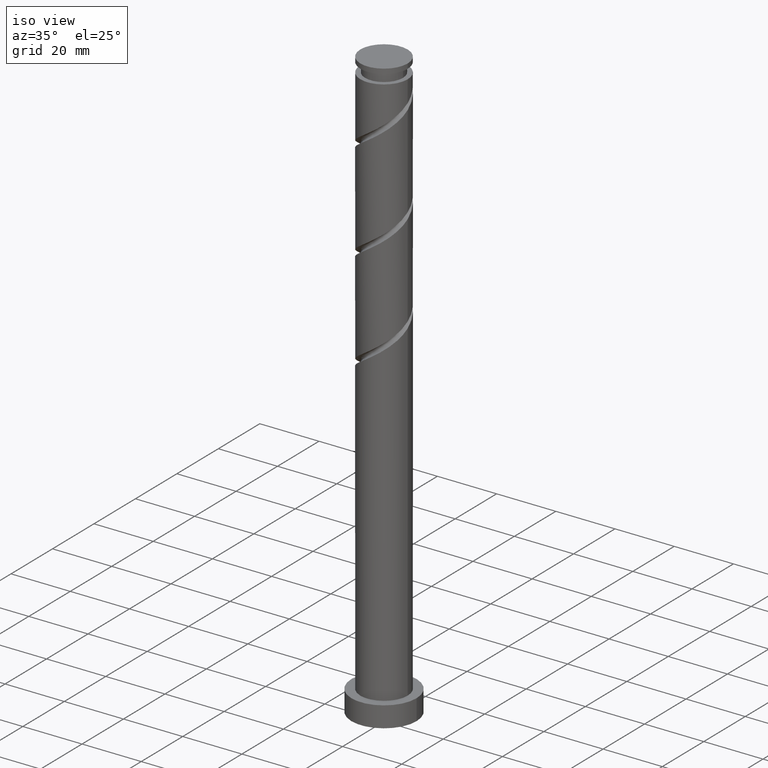
[diagram: clean part render]
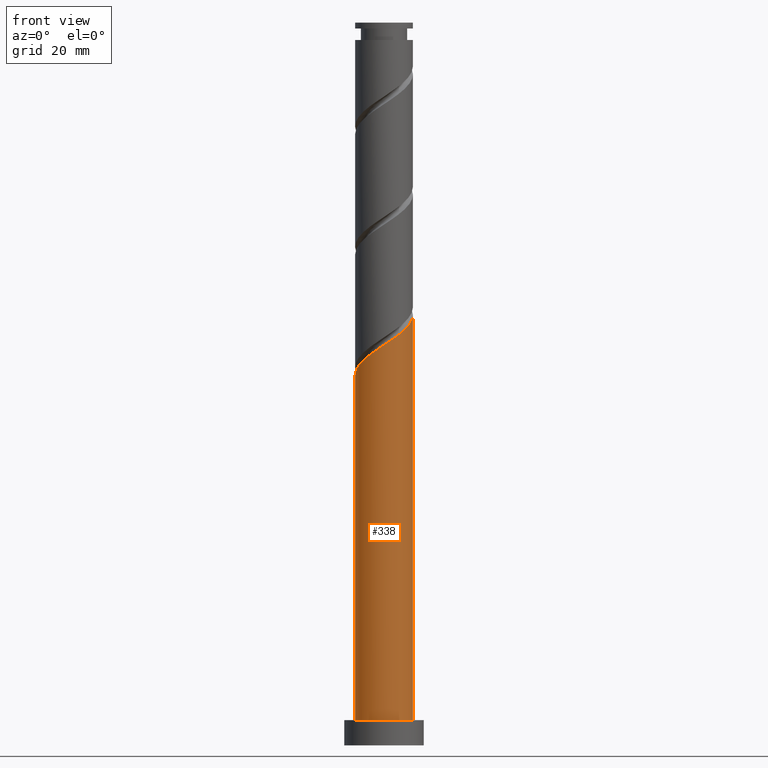
[diagram: tour spotlight — one face highlighted and labeled with its STEP entity id]
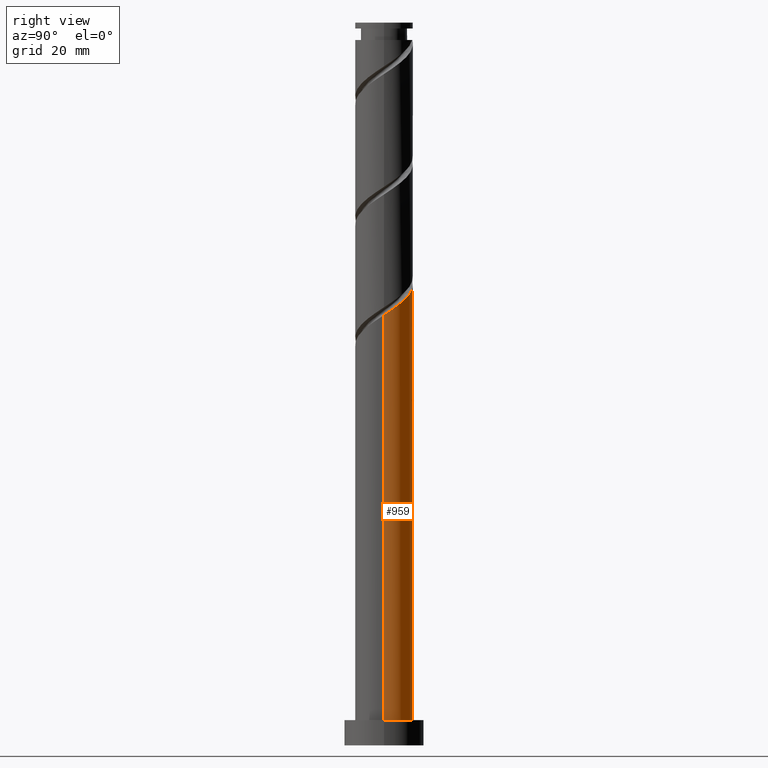
[diagram: tour spotlight — one face highlighted and labeled with its STEP entity id]
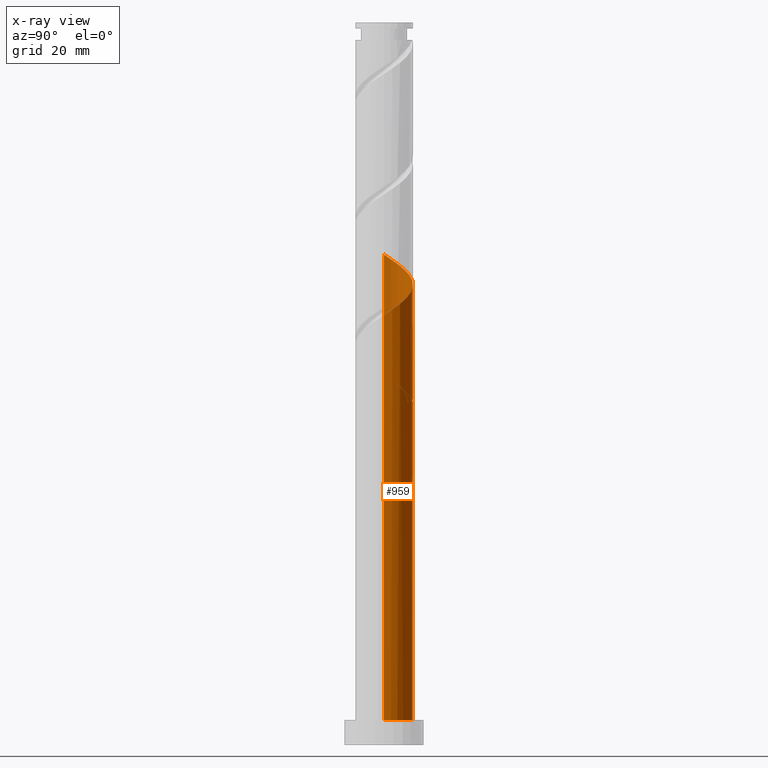
[diagram: x-ray of the same camera — body ghosted, this tour face saturated]
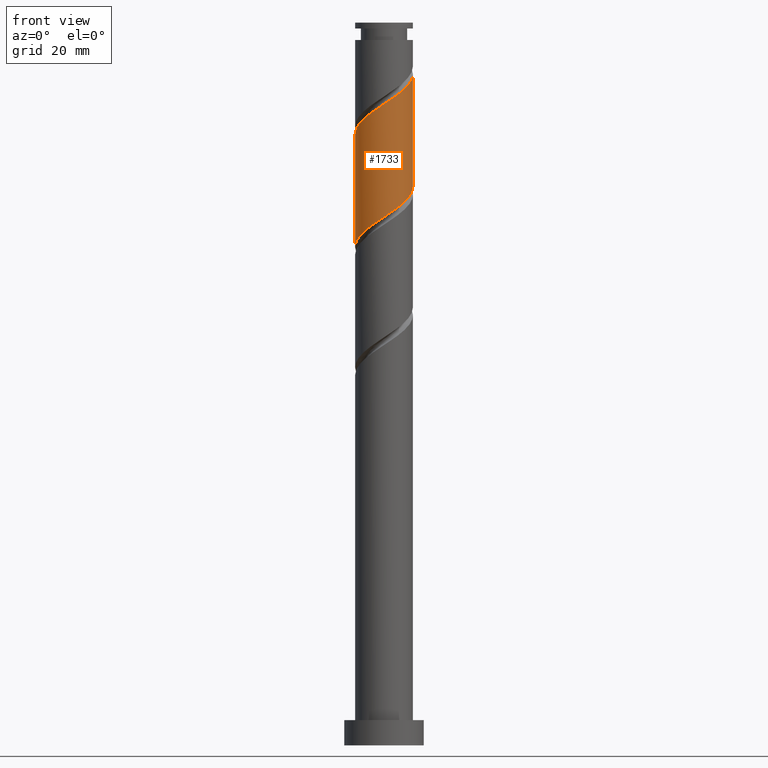
[diagram: tour spotlight — one face highlighted and labeled with its STEP entity id]
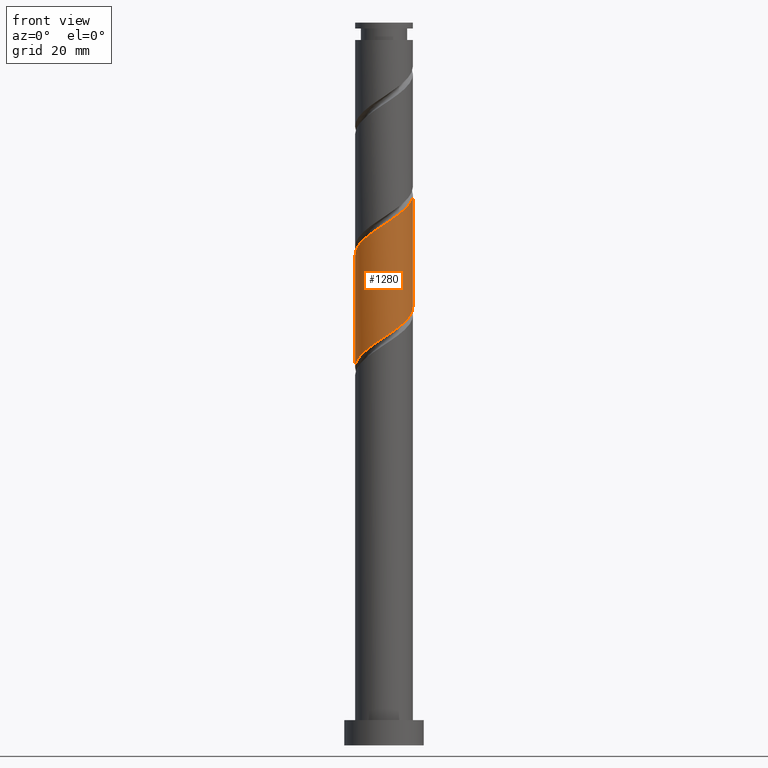
[diagram: tour spotlight — one face highlighted and labeled with its STEP entity id]
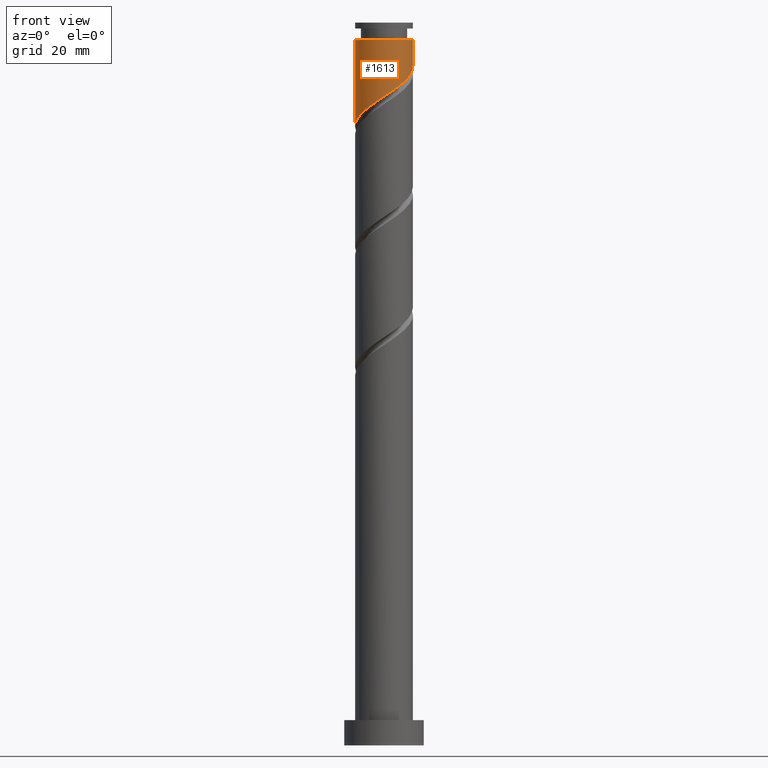
[diagram: tour spotlight — one face highlighted and labeled with its STEP entity id]
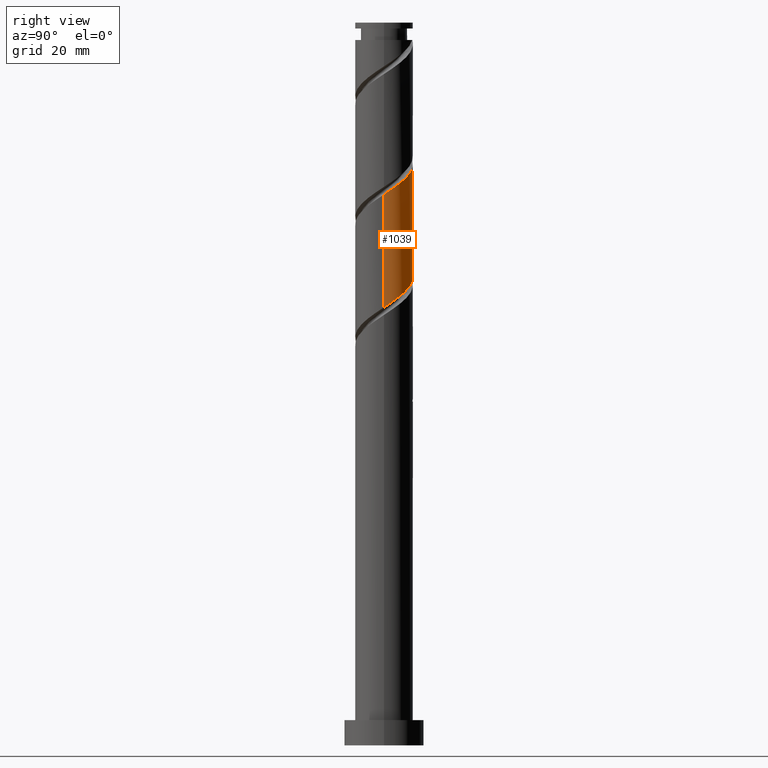
[diagram: tour spotlight — one face highlighted and labeled with its STEP entity id]
A machine part: a face-by-face anatomy tour. The part has 21 B-rep faces; the first image is the clean iso view, then the 6 largest visible faces are spotlighted one at a time (largest first), each with its STEP entity span.

Face 1 — front view, entity #338. In plain terms, the highlighted cylindrical surface (edge-blend (fillet) strip) has radius 8 mm, axis along (-0, -0, -1).
Definition (entity closure, byte-faithful):
#14 = CARTESIAN_POINT ( 'NONE',  ( 3.566875813338892254, -7.160823760728806775, 113.2306574428855726 ) ) ;
#29 = CARTESIAN_POINT ( 'NONE',  ( 6.669416946860165396, -4.418017382144921790, 116.0084352206633582 ) ) ;
#33 = ORIENTED_EDGE ( 'NONE', *, *, #1191, .F. ) ;
#56 = LINE ( 'NONE', #1154, #1432 ) ;
#126 = CARTESIAN_POINT ( 'NONE',  ( -7.840000000000014069, -1.591979899370593587, 103.5084352206633582 ) ) ;
#143 = CARTESIAN_POINT ( 'NONE',  ( -7.160823760728805887, -3.566875813338893586, 104.8973241095522440 ) ) ;
#148 = ORIENTED_EDGE ( 'NONE', *, *, #982, .T. ) ;
#153 = CIRCLE ( 'NONE', #1468, 8.000000000000000000 ) ;
#159 = ORIENTED_EDGE ( 'NONE', *, *, #835, .F. ) ;
#244 = DIRECTION ( 'NONE',  ( 0.000000000000000000, 0.000000000000000000, 1.000000000000000000 ) ) ;
#263 = CARTESIAN_POINT ( 'NONE',  ( 5.298695035169132872, -5.993649215984715006, 114.6195463317744583 ) ) ;
#269 = EDGE_LOOP ( 'NONE', ( #159, #33, #148, #1120 ) ) ;
#273 = CARTESIAN_POINT ( 'NONE',  ( 7.920198261106539128, -1.542637946022688666, 118.0917685539966584 ) ) ;
#286 = CARTESIAN_POINT ( 'NONE',  ( -7.630411870138943620, -2.624135480455778158, 104.2028796651077727 ) ) ;
#298 = CARTESIAN_POINT ( 'NONE',  ( 8.000000000000012434, -1.674823857685454851E-15, 119.1115352321199197 ) ) ;
#307 = CARTESIAN_POINT ( 'NONE',  ( -2.541304964830881641, -7.585629115355305707, 109.0639907762189011 ) ) ;
#338 = ADVANCED_FACE ( 'NONE', ( #1251 ), #839, .T. ) ;
#358 =( BOUNDED_CURVE ( )  B_SPLINE_CURVE ( 2, ( #685, #1255, #126, #286, #143, #1383, #1745, #1628, #953, #676, #307, #1620, #692, #979, #405, #1228, #14, #816, #263, #961, #29, #1514, #807, #273, #1521, #1345, #298 ),
 .UNSPECIFIED., .F., .T. ) 
 B_SPLINE_CURVE_WITH_KNOTS ( ( 3, 2, 2, 2, 2, 2, 2, 2, 2, 2, 2, 2, 2, 3 ),
 ( 0.05453176698144637791, 0.06250000000000000000, 0.07291666666666662966, 0.08333333333333337034, 0.09375000000000000000, 0.1041666666666666297, 0.1145833333333333703, 0.1250000000000000000, 0.1354166666666666297, 0.1458333333333333703, 0.1562500000000000000, 0.1666666666666666297, 0.1770833333333333703, 0.1795317669814462669 ),
 .UNSPECIFIED. ) 
 CURVE ( )  GEOMETRIC_REPRESENTATION_ITEM ( )  RATIONAL_B_SPLINE_CURVE ( ( 0.9062941362546417245, 0.9031415850403461398, 0.9090909090909213841, 0.9013135103398399739, 0.9090909090909213841, 0.9013135103398399739, 0.9090909090909213841, 0.9013135103398399739, 0.9090909090909213841, 0.9013135103398399739, 0.9090909090909213841, 0.9013135103398399739, 0.9090909090909213841, 0.9013135103398399739, 0.9090909090909213841, 0.9013135103398399739, 0.9090909090909213841, 0.9013135103398399739, 0.9090909090909213841, 0.9013135103398399739, 0.9090909090909213841, 0.9013135103398399739, 0.9090909090909213841, 0.9013135103398399739, 0.9090909090909213841, 0.9072628343904152182, 0.9062941362546418356 ) ) 
 REPRESENTATION_ITEM ( '' )  );
#361 = VECTOR ( 'NONE', #391, 1000.000000000000000 ) ;
#391 = DIRECTION ( 'NONE',  ( -0.000000000000000000, -0.000000000000000000, -1.000000000000000000 ) ) ;
#405 = CARTESIAN_POINT ( 'NONE',  ( 1.591979899370592699, -7.840000000000014069, 111.8417685539966726 ) ) ;
#464 = DIRECTION ( 'NONE',  ( -0.000000000000000000, -0.000000000000000000, -1.000000000000000000 ) ) ;
#527 = VERTEX_POINT ( 'NONE', #793 ) ;
#676 = CARTESIAN_POINT ( 'NONE',  ( -3.539971983639073727, -7.251059969604071398, 108.3695463317744725 ) ) ;
#685 = CARTESIAN_POINT ( 'NONE',  ( -8.000000000000012434, -3.319740146483669233E-15, 102.4448685654532767 ) ) ;
#692 = CARTESIAN_POINT ( 'NONE',  ( -0.4914068138686400466, -7.984893195483813599, 110.4528796651077727 ) ) ;
#754 = CARTESIAN_POINT ( 'NONE',  ( -8.000000000000000000, 0.000000000000000000, 7.000000000000000000 ) ) ;
#793 = CARTESIAN_POINT ( 'NONE',  ( 8.000000000000000000, 9.797174393178825657E-16, 7.000000000000000000 ) ) ;
#807 = CARTESIAN_POINT ( 'NONE',  ( 7.585629115355305707, -2.541304964830882085, 117.3973241095522440 ) ) ;
#816 = CARTESIAN_POINT ( 'NONE',  ( 4.509616146222005462, -6.691235651318665489, 113.9251018873300154 ) ) ;
#835 = EDGE_CURVE ( 'NONE', #1218, #527, #56, .T. ) ;
#839 = CYLINDRICAL_SURFACE ( 'NONE', #1704, 8.000000000000000000 ) ;
#850 = DIRECTION ( 'NONE',  ( -1.000000000000000000, 0.000000000000000000, 0.000000000000000000 ) ) ;
#945 = CARTESIAN_POINT ( 'NONE',  ( -8.000000000000012434, -3.319740146483669233E-15, 102.4448685654532767 ) ) ;
#953 = CARTESIAN_POINT ( 'NONE',  ( -4.418017382144918237, -6.669416946860166284, 107.6751018873300296 ) ) ;
#961 = CARTESIAN_POINT ( 'NONE',  ( 6.087773924116254065, -5.296062780650762747, 115.3139907762189154 ) ) ;
#979 = CARTESIAN_POINT ( 'NONE',  ( 0.5598243182854053535, -8.049588129861081853, 111.1473241095522013 ) ) ;
#982 = EDGE_CURVE ( 'NONE', #1186, #1306, #1196, .T. ) ;
#1113 = CARTESIAN_POINT ( 'NONE',  ( 0.000000000000000000, 0.000000000000000000, 200.0000000000000000 ) ) ;
#1120 = ORIENTED_EDGE ( 'NONE', *, *, #1641, .T. ) ;
#1154 = CARTESIAN_POINT ( 'NONE',  ( 8.000000000000000000, 9.797174393178825657E-16, 200.0000000000000000 ) ) ;
#1186 = VERTEX_POINT ( 'NONE', #945 ) ;
#1191 = EDGE_CURVE ( 'NONE', #1186, #1218, #358, .T. ) ;
#1196 = LINE ( 'NONE', #1445, #361 ) ;
#1218 = VERTEX_POINT ( 'NONE', #1356 ) ;
#1228 = CARTESIAN_POINT ( 'NONE',  ( 2.624135480455778158, -7.630411870138943620, 112.5362129984411155 ) ) ;
#1251 = FACE_OUTER_BOUND ( 'NONE', #269, .T. ) ;
#1255 = CARTESIAN_POINT ( 'NONE',  ( -8.000000000000012434, -0.8040302522073746738, 102.9782949346425340 ) ) ;
#1271 = DIRECTION ( 'NONE',  ( -0.000000000000000000, -0.000000000000000000, -1.000000000000000000 ) ) ;
#1306 = VERTEX_POINT ( 'NONE', #754 ) ;
#1326 = CARTESIAN_POINT ( 'NONE',  ( 0.000000000000000000, 0.000000000000000000, 7.000000000000000000 ) ) ;
#1345 = CARTESIAN_POINT ( 'NONE',  ( 8.000000000000012434, -0.2459356132614008983, 118.9483715440917564 ) ) ;
#1356 = CARTESIAN_POINT ( 'NONE',  ( 8.000000000000012434, -1.674823857685454851E-15, 119.1115352321199197 ) ) ;
#1383 = CARTESIAN_POINT ( 'NONE',  ( -6.691235651318664601, -4.509616146222007238, 105.5917685539966726 ) ) ;
#1432 = VECTOR ( 'NONE', #1271, 1000.000000000000000 ) ;
#1445 = CARTESIAN_POINT ( 'NONE',  ( -8.000000000000000000, 0.000000000000000000, 200.0000000000000000 ) ) ;
#1452 = DIRECTION ( 'NONE',  ( 1.000000000000000000, 0.000000000000000000, 0.000000000000000000 ) ) ;
#1468 = AXIS2_PLACEMENT_3D ( 'NONE', #1326, #244, #1452 ) ;
#1514 = CARTESIAN_POINT ( 'NONE',  ( 7.251059969604068733, -3.539971983639074171, 116.7028796651077727 ) ) ;
#1521 = CARTESIAN_POINT ( 'NONE',  ( 7.984893195483813599, -0.4914068138686441545, 118.7862129984411297 ) ) ;
#1620 = CARTESIAN_POINT ( 'NONE',  ( -1.542637946022684226, -7.920198261106539128, 109.7584352206633014 ) ) ;
#1628 = CARTESIAN_POINT ( 'NONE',  ( -5.296062780650762747, -6.087773924116254065, 106.9806574428855583 ) ) ;
#1641 = EDGE_CURVE ( 'NONE', #1306, #527, #153, .T. ) ;
#1704 = AXIS2_PLACEMENT_3D ( 'NONE', #1113, #464, #850 ) ;
#1745 = CARTESIAN_POINT ( 'NONE',  ( -5.993649215984713230, -5.298695035169133760, 106.2862129984411297 ) ) ;

Face 2 — right view, entity #959. An x-ray twin of the same camera follows (body ghosted, this face saturated) — the face is partly hidden behind the body. In plain terms, the highlighted cylindrical surface (edge-blend (fillet) strip) has radius 8 mm, axis along (-0, -0, -1).
Definition (entity closure, byte-faithful):
#56 = LINE ( 'NONE', #1154, #1432 ) ;
#64 = VERTEX_POINT ( 'NONE', #410 ) ;
#79 = CARTESIAN_POINT ( 'NONE',  ( 7.630411870138943620, 2.624135480455775937, 120.8695463317744299 ) ) ;
#86 = CARTESIAN_POINT ( 'NONE',  ( -8.000000000000012434, -3.319740146483669233E-15, 135.7782018987865911 ) ) ;
#95 = CIRCLE ( 'NONE', #180, 8.000000000000000000 ) ;
#115 = CARTESIAN_POINT ( 'NONE',  ( -7.920198261106539128, 1.542637946022684003, 134.7584352206633014 ) ) ;
#117 = DIRECTION ( 'NONE',  ( -0.000000000000000000, -0.000000000000000000, -1.000000000000000000 ) ) ;
#146 = CARTESIAN_POINT ( 'NONE',  ( -2.624135480455778602, 7.630411870138940955, 95.86954633177438723 ) ) ;
#165 = CARTESIAN_POINT ( 'NONE',  ( -5.298695035169133760, 5.993649215984713230, 97.95287966510781530 ) ) ;
#167 = EDGE_CURVE ( 'NONE', #527, #1306, #95, .T. ) ;
#180 = AXIS2_PLACEMENT_3D ( 'NONE', #303, #566, #1361 ) ;
#191 = CARTESIAN_POINT ( 'NONE',  ( -6.691235651318653055, 4.509616146222005462, 101.4251018873300012 ) ) ;
#201 = EDGE_CURVE ( 'NONE', #64, #1395, #933, .T. ) ;
#204 = ORIENTED_EDGE ( 'NONE', *, *, #982, .F. ) ;
#219 = CARTESIAN_POINT ( 'NONE',  ( -7.160823760728788123, 3.566875813338890477, 102.1195463317744299 ) ) ;
#235 = CARTESIAN_POINT ( 'NONE',  ( 8.000000000000012434, -1.674823857685454851E-15, 119.1115352321199197 ) ) ;
#252 = CARTESIAN_POINT ( 'NONE',  ( -7.251059969604072286, 3.539971983639071507, 133.3695463317744156 ) ) ;
#261 = VERTEX_POINT ( 'NONE', #312 ) ;
#303 = CARTESIAN_POINT ( 'NONE',  ( 0.000000000000000000, 0.000000000000000000, 7.000000000000000000 ) ) ;
#312 = CARTESIAN_POINT ( 'NONE',  ( 1.591979899370594254, 7.839999999999998082, 95.17510188733000120 ) ) ;
#316 = CARTESIAN_POINT ( 'NONE',  ( -6.669416946860167172, 4.418017382144917349, 99.34176855399665840 ) ) ;
#361 = VECTOR ( 'NONE', #391, 1000.000000000000000 ) ;
#389 = CARTESIAN_POINT ( 'NONE',  ( 7.840000000000014069, 1.591979899370592033, 120.1751018873300154 ) ) ;
#391 = DIRECTION ( 'NONE',  ( -0.000000000000000000, -0.000000000000000000, -1.000000000000000000 ) ) ;
#410 = CARTESIAN_POINT ( 'NONE',  ( -8.000000000000012434, -3.319740146483669233E-15, 135.7782018987865911 ) ) ;
#428 = CARTESIAN_POINT ( 'NONE',  ( -8.000000000000000000, 0.000000000000000000, 200.0000000000000000 ) ) ;
#450 = CARTESIAN_POINT ( 'NONE',  ( -1.542637946022679785, 7.920198261106529358, 97.25843522066334401 ) ) ;
#481 = ORIENTED_EDGE ( 'NONE', *, *, #835, .T. ) ;
#494 = CARTESIAN_POINT ( 'NONE',  ( -8.000000000000012434, 0.2459356132613987056, 135.6150382107584278 ) ) ;
#510 = CARTESIAN_POINT ( 'NONE',  ( 6.691235651318665489, 4.509616146222005462, 122.2584352206633014 ) ) ;
#518 = CARTESIAN_POINT ( 'NONE',  ( -5.298695035169133760, 5.993649215984713230, 131.2862129984411581 ) ) ;
#527 = VERTEX_POINT ( 'NONE', #793 ) ;
#566 = DIRECTION ( 'NONE',  ( 0.000000000000000000, 0.000000000000000000, 1.000000000000000000 ) ) ;
#580 = CARTESIAN_POINT ( 'NONE',  ( -7.920198261106539128, 1.542637946022684003, 101.4251018873299870 ) ) ;
#597 = CARTESIAN_POINT ( 'NONE',  ( 0.5598243182854089062, 8.049588129861067642, 95.86954633177444407 ) ) ;
#601 = ORIENTED_EDGE ( 'NONE', *, *, #1659, .F. ) ;
#606 = CARTESIAN_POINT ( 'NONE',  ( 1.591979899370594254, 7.839999999999998082, 95.17510188733001542 ) ) ;
#630 = CARTESIAN_POINT ( 'NONE',  ( 4.418017382144919125, 6.669416946860166284, 124.3417685539966868 ) ) ;
#638 = CARTESIAN_POINT ( 'NONE',  ( 7.160823760728806775, 3.566875813338891366, 121.5639907762189154 ) ) ;
#674 = EDGE_CURVE ( 'NONE', #1447, #1186, #1138, .T. ) ;
#687 = CARTESIAN_POINT ( 'NONE',  ( -3.566875813338894030, 7.160823760728804999, 96.56399077621892957 ) ) ;
#737 = DIRECTION ( 'NONE',  ( 0.000000000000000000, 1.000000000000000000, -5.204170427930421283E-15 ) ) ;
#740 = CARTESIAN_POINT ( 'NONE',  ( -3.539971983639063513, 7.251059969604063404, 98.64732410955220132 ) ) ;
#754 = CARTESIAN_POINT ( 'NONE',  ( -8.000000000000000000, 0.000000000000000000, 7.000000000000000000 ) ) ;
#758 = CARTESIAN_POINT ( 'NONE',  ( -7.839999999999998082, 1.591979899370592255, 103.5084352206633014 ) ) ;
#786 = CARTESIAN_POINT ( 'NONE',  ( -3.566875813338894030, 7.160823760728804999, 129.8973241095522724 ) ) ;
#793 = CARTESIAN_POINT ( 'NONE',  ( 8.000000000000000000, 9.797174393178825657E-16, 7.000000000000000000 ) ) ;
#796 = CARTESIAN_POINT ( 'NONE',  ( -4.509616146222008126, 6.691235651318663713, 130.5917685539966726 ) ) ;
#822 =( BOUNDED_CURVE ( )  B_SPLINE_CURVE ( 2, ( #235, #1184, #389, #79, #638, #510, #1435, #1059, #630, #1588, #1732, #896, #1310, #918, #1573, #1203, #786, #796, #518, #1596, #926, #252, #1566, #115, #1165, #494, #86 ),
 .UNSPECIFIED., .F., .T. ) 
 B_SPLINE_CURVE_WITH_KNOTS ( ( 3, 2, 2, 2, 2, 2, 2, 2, 2, 2, 2, 2, 2, 3 ),
 ( 0.1795317669814462669, 0.1875000000000000000, 0.1979166666666666297, 0.2083333333333333703, 0.2187500000000000000, 0.2291666666666666297, 0.2395833333333333703, 0.2500000000000000000, 0.2604166666666666297, 0.2708333333333333703, 0.2812500000000000000, 0.2916666666666666297, 0.3020833333333333703, 0.3045317669814462391 ),
 .UNSPECIFIED. ) 
 CURVE ( )  GEOMETRIC_REPRESENTATION_ITEM ( )  RATIONAL_B_SPLINE_CURVE ( ( 0.9062941362546418356, 0.9031415850403461398, 0.9090909090909213841, 0.9013135103398399739, 0.9090909090909213841, 0.9013135103398399739, 0.9090909090909213841, 0.9013135103398399739, 0.9090909090909213841, 0.9013135103398399739, 0.9090909090909213841, 0.9013135103398399739, 0.9090909090909213841, 0.9013135103398399739, 0.9090909090909213841, 0.9013135103398399739, 0.9090909090909213841, 0.9013135103398399739, 0.9090909090909213841, 0.9013135103398399739, 0.9090909090909213841, 0.9013135103398399739, 0.9090909090909213841, 0.9013135103398399739, 0.9090909090909213841, 0.9072628343904152182, 0.9062941362546417245 ) ) 
 REPRESENTATION_ITEM ( '' )  );
#835 = EDGE_CURVE ( 'NONE', #1218, #527, #56, .T. ) ;
#847 = CARTESIAN_POINT ( 'NONE',  ( -7.585629115355305707, 2.541304964830878976, 100.7306574428855868 ) ) ;
#852 = CARTESIAN_POINT ( 'NONE',  ( -1.591979899370591589, 7.840000000000014069, 95.17510188733000120 ) ) ;
#854 = CARTESIAN_POINT ( 'NONE',  ( -7.984893195483813599, 0.4914068138686395470, 102.1195463317744725 ) ) ;
#865 = ORIENTED_EDGE ( 'NONE', *, *, #167, .T. ) ;
#867 = AXIS2_PLACEMENT_3D ( 'NONE', #920, #117, #1305 ) ;
#880 = CARTESIAN_POINT ( 'NONE',  ( -5.993649215984699907, 5.298695035169125767, 100.7306574428855583 ) ) ;
#887 = ORIENTED_EDGE ( 'NONE', *, *, #891, .F. ) ;
#890 = CARTESIAN_POINT ( 'NONE',  ( -7.999999999999998224, 0.8040302522073743408, 104.0385755066841114 ) ) ;
#891 = EDGE_CURVE ( 'NONE', #1395, #261, #1317, .T. ) ;
#896 = CARTESIAN_POINT ( 'NONE',  ( 1.542637946022689110, 7.920198261106539128, 126.4251018873299728 ) ) ;
#918 = CARTESIAN_POINT ( 'NONE',  ( -0.5598243182854001354, 8.049588129861081853, 127.8139907762189154 ) ) ;
#920 = CARTESIAN_POINT ( 'NONE',  ( 0.000000000000000000, 0.000000000000000000, 200.0000000000000000 ) ) ;
#926 = CARTESIAN_POINT ( 'NONE',  ( -6.669416946860167172, 4.418017382144917349, 132.6751018873300438 ) ) ;
#933 = LINE ( 'NONE', #428, #1033 ) ;
#937 = FACE_OUTER_BOUND ( 'NONE', #1506, .T. ) ;
#945 = CARTESIAN_POINT ( 'NONE',  ( -8.000000000000012434, -3.319740146483669233E-15, 102.4448685654532767 ) ) ;
#957 = DIRECTION ( 'NONE',  ( -0.000000000000000000, -0.000000000000000000, -1.000000000000000000 ) ) ;
#959 = ADVANCED_FACE ( 'NONE', ( #937 ), #1736, .T. ) ;
#963 = CARTESIAN_POINT ( 'NONE',  ( -1.591979899370591589, 7.840000000000014069, 95.17510188733000120 ) ) ;
#982 = EDGE_CURVE ( 'NONE', #1186, #1306, #1196, .T. ) ;
#1008 = CARTESIAN_POINT ( 'NONE',  ( -4.418017382144908467, 6.669416946860154738, 99.34176855399665840 ) ) ;
#1033 = VECTOR ( 'NONE', #957, 1000.000000000000000 ) ;
#1056 = ORIENTED_EDGE ( 'NONE', *, *, #201, .F. ) ;
#1059 = CARTESIAN_POINT ( 'NONE',  ( 5.296062780650766300, 6.087773924116251401, 123.6473241095522155 ) ) ;
#1084 = CARTESIAN_POINT ( 'NONE',  ( -8.000000000000012434, -3.319740146483669233E-15, 102.4448685654532767 ) ) ;
#1111 = CARTESIAN_POINT ( 'NONE',  ( -7.251059969604072286, 3.539971983639071507, 100.0362129984410871 ) ) ;
#1133 = CARTESIAN_POINT ( 'NONE',  ( -7.999999999999998224, 7.596522497359083187E-15, 104.5720018758733687 ) ) ;
#1138 =( BOUNDED_CURVE ( )  B_SPLINE_CURVE ( 2, ( #963, #146, #687, #1240, #165, #1249, #316, #1111, #847, #580, #854, #1231, #1084 ),
 .UNSPECIFIED., .F., .T. ) 
 B_SPLINE_CURVE_WITH_KNOTS ( ( 3, 2, 2, 2, 2, 2, 3 ),
 ( 0.000000000000000000, 0.01041666666666662966, 0.02083333333333337034, 0.03125000000000000000, 0.04166666666666662966, 0.05208333333333337034, 0.05453176698144637097 ),
 .UNSPECIFIED. ) 
 CURVE ( )  GEOMETRIC_REPRESENTATION_ITEM ( )  RATIONAL_B_SPLINE_CURVE ( ( 0.9090909090909213841, 0.9013135103398399739, 0.9090909090909213841, 0.9013135103398399739, 0.9090909090909213841, 0.9013135103398399739, 0.9090909090909213841, 0.9013135103398399739, 0.9090909090909213841, 0.9013135103398399739, 0.9090909090909213841, 0.9072628343904151071, 0.9062941362546417245 ) ) 
 REPRESENTATION_ITEM ( '' )  );
#1152 = CARTESIAN_POINT ( 'NONE',  ( 0.000000000000000000, 0.000000000000000000, 95.17510188733002963 ) ) ;
#1154 = CARTESIAN_POINT ( 'NONE',  ( 8.000000000000000000, 9.797174393178825657E-16, 200.0000000000000000 ) ) ;
#1165 = CARTESIAN_POINT ( 'NONE',  ( -7.984893195483813599, 0.4914068138686395470, 135.4528796651077869 ) ) ;
#1184 = CARTESIAN_POINT ( 'NONE',  ( 8.000000000000014211, 0.8040302522073584646, 119.6449616013091912 ) ) ;
#1186 = VERTEX_POINT ( 'NONE', #945 ) ;
#1196 = LINE ( 'NONE', #1445, #361 ) ;
#1203 = CARTESIAN_POINT ( 'NONE',  ( -2.624135480455778602, 7.630411870138940955, 129.2028796651077585 ) ) ;
#1218 = VERTEX_POINT ( 'NONE', #1356 ) ;
#1231 = CARTESIAN_POINT ( 'NONE',  ( -8.000000000000014211, 0.2459356132613848278, 102.2817048774251276 ) ) ;
#1240 = CARTESIAN_POINT ( 'NONE',  ( -4.509616146222008126, 6.691235651318663713, 97.25843522066331559 ) ) ;
#1249 = CARTESIAN_POINT ( 'NONE',  ( -6.087773924116255841, 5.296062780650761859, 98.64732410955221553 ) ) ;
#1271 = DIRECTION ( 'NONE',  ( -0.000000000000000000, -0.000000000000000000, -1.000000000000000000 ) ) ;
#1279 = CARTESIAN_POINT ( 'NONE',  ( -7.999999999999998224, 7.596522497359083187E-15, 104.5720018758733545 ) ) ;
#1288 = CARTESIAN_POINT ( 'NONE',  ( -0.4914068138686350506, 7.984893195483797612, 96.56399077621887272 ) ) ;
#1305 = DIRECTION ( 'NONE',  ( -1.000000000000000000, 0.000000000000000000, 0.000000000000000000 ) ) ;
#1306 = VERTEX_POINT ( 'NONE', #754 ) ;
#1310 = CARTESIAN_POINT ( 'NONE',  ( 0.4914068138686445986, 7.984893195483813599, 127.1195463317744725 ) ) ;
#1317 =( BOUNDED_CURVE ( )  B_SPLINE_CURVE ( 2, ( #1279, #890, #758, #1438, #219, #191, #880, #1400, #1008, #740, #1553, #450, #1288, #597, #606 ),
 .UNSPECIFIED., .F., .T. ) 
 B_SPLINE_CURVE_WITH_KNOTS ( ( 3, 2, 2, 2, 2, 2, 2, 3 ),
 ( 0.9295317669814463502, 0.9375000000000000000, 0.9479166666666666297, 0.9583333333333333703, 0.9687500000000000000, 0.9791666666666666297, 0.9895833333333333703, 1.000000000000000000 ),
 .UNSPECIFIED. ) 
 CURVE ( )  GEOMETRIC_REPRESENTATION_ITEM ( )  RATIONAL_B_SPLINE_CURVE ( ( 0.9062941362546350632, 0.9031415850403393675, 0.9090909090909147228, 0.9013135103398330905, 0.9090909090909147228, 0.9013135103398330905, 0.9090909090909147228, 0.9013135103398330905, 0.9090909090909147228, 0.9013135103398330905, 0.9090909090909147228, 0.9013135103398330905, 0.9090909090909147228, 0.9013135103398330905, 0.9090909090909147228 ) ) 
 REPRESENTATION_ITEM ( '' )  );
#1356 = CARTESIAN_POINT ( 'NONE',  ( 8.000000000000012434, -1.674823857685454851E-15, 119.1115352321199197 ) ) ;
#1360 = ORIENTED_EDGE ( 'NONE', *, *, #674, .F. ) ;
#1361 = DIRECTION ( 'NONE',  ( 1.000000000000000000, 0.000000000000000000, 0.000000000000000000 ) ) ;
#1395 = VERTEX_POINT ( 'NONE', #1133 ) ;
#1400 = CARTESIAN_POINT ( 'NONE',  ( -5.296062780650752977, 6.087773924116249624, 100.0362129984410871 ) ) ;
#1432 = VECTOR ( 'NONE', #1271, 1000.000000000000000 ) ;
#1435 = CARTESIAN_POINT ( 'NONE',  ( 5.993649215984716783, 5.298695035169128431, 122.9528796651078011 ) ) ;
#1438 = CARTESIAN_POINT ( 'NONE',  ( -7.630411870138929409, 2.624135480455776381, 102.8139907762188727 ) ) ;
#1445 = CARTESIAN_POINT ( 'NONE',  ( -8.000000000000000000, 0.000000000000000000, 200.0000000000000000 ) ) ;
#1447 = VERTEX_POINT ( 'NONE', #852 ) ;
#1458 = ORIENTED_EDGE ( 'NONE', *, *, #1467, .T. ) ;
#1465 = AXIS2_PLACEMENT_3D ( 'NONE', #1152, #1686, #737 ) ;
#1467 = EDGE_CURVE ( 'NONE', #1447, #261, #1493, .T. ) ;
#1493 = CIRCLE ( 'NONE', #1465, 8.000000000000000000 ) ;
#1506 = EDGE_LOOP ( 'NONE', ( #601, #481, #865, #204, #1360, #1458, #887, #1056 ) ) ;
#1553 = CARTESIAN_POINT ( 'NONE',  ( -2.541304964830871871, 7.585629115355294161, 97.95287966510778688 ) ) ;
#1566 = CARTESIAN_POINT ( 'NONE',  ( -7.585629115355305707, 2.541304964830878976, 134.0639907762189296 ) ) ;
#1573 = CARTESIAN_POINT ( 'NONE',  ( -1.591979899370591811, 7.840000000000014069, 128.5084352206633866 ) ) ;
#1588 = CARTESIAN_POINT ( 'NONE',  ( 3.539971983639075059, 7.251059969604070510, 125.0362129984410871 ) ) ;
#1596 = CARTESIAN_POINT ( 'NONE',  ( -6.087773924116255841, 5.296062780650761859, 131.9806574428855299 ) ) ;
#1659 = EDGE_CURVE ( 'NONE', #1218, #64, #822, .T. ) ;
#1686 = DIRECTION ( 'NONE',  ( 0.000000000000000000, -4.336808689942021680E-15, -1.000000000000000000 ) ) ;
#1732 = CARTESIAN_POINT ( 'NONE',  ( 2.541304964830882085, 7.585629115355304819, 125.7306574428855868 ) ) ;
#1736 = CYLINDRICAL_SURFACE ( 'NONE', #867, 8.000000000000000000 ) ;

Face 3 — front view, entity #1733. In plain terms, the highlighted cylindrical surface (edge-blend (fillet) strip) has radius 8 mm, axis along (-0, -0, -1).
Definition (entity closure, byte-faithful):
#6 = CARTESIAN_POINT ( 'NONE',  ( -7.999999999999998224, 7.596522497359083187E-15, 137.9053352092066973 ) ) ;
#40 = DIRECTION ( 'NONE',  ( -0.000000000000000000, -0.000000000000000000, -1.000000000000000000 ) ) ;
#49 = CARTESIAN_POINT ( 'NONE',  ( -5.296062780650762747, -6.087773924116254065, 173.6473241095522155 ) ) ;
#65 = CARTESIAN_POINT ( 'NONE',  ( 6.669416946860165396, -4.418017382144921790, 182.6751018873301007 ) ) ;
#81 = CARTESIAN_POINT ( 'NONE',  ( -5.298695035169127543, -5.993649215984699019, 142.3973241095522440 ) ) ;
#83 = ORIENTED_EDGE ( 'NONE', *, *, #930, .F. ) ;
#100 = CARTESIAN_POINT ( 'NONE',  ( 7.839999999999998082, -1.591979899370593143, 153.5084352206633298 ) ) ;
#101 =( BOUNDED_CURVE ( )  B_SPLINE_CURVE ( 2, ( #1726, #913, #100, #1053, #1591, #1611, #1701, #1207, #1582, #532, #237, #1178, #1187, #1483, #771, #255, #765, #246, #81, #633, #1709, #1469, #1312, #521, #381, #928, #1072 ),
 .UNSPECIFIED., .F., .T. ) 
 B_SPLINE_CURVE_WITH_KNOTS ( ( 3, 2, 2, 2, 2, 2, 2, 2, 2, 2, 2, 2, 2, 3 ),
 ( 0.5545317669814462391, 0.5625000000000000000, 0.5729166666666666297, 0.5833333333333333703, 0.5937500000000000000, 0.6041666666666666297, 0.6145833333333333703, 0.6250000000000000000, 0.6354166666666666297, 0.6458333333333333703, 0.6562500000000000000, 0.6666666666666666297, 0.6770833333333333703, 0.6795317669814463502 ),
 .UNSPECIFIED. ) 
 CURVE ( )  GEOMETRIC_REPRESENTATION_ITEM ( )  RATIONAL_B_SPLINE_CURVE ( ( 0.9062941362546350632, 0.9031415850403392565, 0.9090909090909147228, 0.9013135103398330905, 0.9090909090909147228, 0.9013135103398330905, 0.9090909090909147228, 0.9013135103398330905, 0.9090909090909147228, 0.9013135103398330905, 0.9090909090909147228, 0.9013135103398330905, 0.9090909090909147228, 0.9013135103398330905, 0.9090909090909147228, 0.9013135103398330905, 0.9090909090909147228, 0.9013135103398330905, 0.9090909090909147228, 0.9013135103398330905, 0.9090909090909147228, 0.9013135103398330905, 0.9090909090909147228, 0.9013135103398330905, 0.9090909090909147228, 0.9072628343904084458, 0.9062941362546350632 ) ) 
 REPRESENTATION_ITEM ( '' )  );
#181 = CARTESIAN_POINT ( 'NONE',  ( -0.4914068138686400466, -7.984893195483813599, 177.1195463317744725 ) ) ;
#200 = CARTESIAN_POINT ( 'NONE',  ( 1.591979899370592699, -7.840000000000014069, 178.5084352206633298 ) ) ;
#237 = CARTESIAN_POINT ( 'NONE',  ( 2.541304964830869206, -7.585629115355294161, 147.9528796651077585 ) ) ;
#246 = CARTESIAN_POINT ( 'NONE',  ( -4.509616146222005462, -6.691235651318653055, 143.0917685539967010 ) ) ;
#255 = CARTESIAN_POINT ( 'NONE',  ( -2.624135480455778158, -7.630411870138929409, 144.4806574428855868 ) ) ;
#332 = CARTESIAN_POINT ( 'NONE',  ( 7.585629115355305707, -2.541304964830882085, 184.0639907762189011 ) ) ;
#381 = CARTESIAN_POINT ( 'NONE',  ( -7.984893195483797612, -0.4914068138686341625, 138.2306574428855583 ) ) ;
#445 = VERTEX_POINT ( 'NONE', #1040 ) ;
#461 = CARTESIAN_POINT ( 'NONE',  ( 4.509616146222005462, -6.691235651318665489, 180.5917685539966726 ) ) ;
#470 = CARTESIAN_POINT ( 'NONE',  ( -5.993649215984713230, -5.298695035169133760, 172.9528796651078153 ) ) ;
#519 = VERTEX_POINT ( 'NONE', #6 ) ;
#521 = CARTESIAN_POINT ( 'NONE',  ( -7.920198261106529358, -1.542637946022677786, 138.9251018873299870 ) ) ;
#532 = CARTESIAN_POINT ( 'NONE',  ( 3.539971983639062181, -7.251059969604063404, 148.6473241095522440 ) ) ;
#539 = ORIENTED_EDGE ( 'NONE', *, *, #878, .F. ) ;
#548 = FACE_OUTER_BOUND ( 'NONE', #1621, .T. ) ;
#590 = CARTESIAN_POINT ( 'NONE',  ( -8.000000000000014211, -0.8040302522073694558, 169.6449616013092054 ) ) ;
#616 = CARTESIAN_POINT ( 'NONE',  ( 7.984893195483813599, -0.4914068138686441545, 185.4528796651077869 ) ) ;
#625 = CARTESIAN_POINT ( 'NONE',  ( -8.000000000000012434, -6.579665155192856935E-16, 169.1115352321199623 ) ) ;
#633 = CARTESIAN_POINT ( 'NONE',  ( -6.087773924116250512, -5.296062780650752089, 141.7028796651077869 ) ) ;
#645 = AXIS2_PLACEMENT_3D ( 'NONE', #967, #682, #1618 ) ;
#682 = DIRECTION ( 'NONE',  ( -0.000000000000000000, -0.000000000000000000, -1.000000000000000000 ) ) ;
#701 = CYLINDRICAL_SURFACE ( 'NONE', #645, 8.000000000000000000 ) ;
#713 = LINE ( 'NONE', #1651, #1206 ) ;
#728 = EDGE_CURVE ( 'NONE', #445, #519, #713, .T. ) ;
#732 = CARTESIAN_POINT ( 'NONE',  ( 0.5598243182854053535, -8.049588129861081853, 177.8139907762188443 ) ) ;
#748 = CARTESIAN_POINT ( 'NONE',  ( 6.087773924116254065, -5.296062780650762747, 181.9806574428855299 ) ) ;
#765 = CARTESIAN_POINT ( 'NONE',  ( -3.566875813338890922, -7.160823760728788123, 143.7862129984411013 ) ) ;
#771 = CARTESIAN_POINT ( 'NONE',  ( -1.591979899370592921, -7.839999999999998082, 145.1751018873300154 ) ) ;
#780 = CARTESIAN_POINT ( 'NONE',  ( 8.000000000000014211, -0.2459356132613951806, 185.6150382107584278 ) ) ;
#861 = CARTESIAN_POINT ( 'NONE',  ( -1.542637946022684226, -7.920198261106539128, 176.4251018873300438 ) ) ;
#870 = CARTESIAN_POINT ( 'NONE',  ( 7.920198261106539128, -1.542637946022688666, 184.7584352206633582 ) ) ;
#878 = EDGE_CURVE ( 'NONE', #1192, #1460, #1568, .T. ) ;
#913 = CARTESIAN_POINT ( 'NONE',  ( 8.000000000000000000, -0.8040302522073642377, 154.0385755066841398 ) ) ;
#928 = CARTESIAN_POINT ( 'NONE',  ( -7.999999999999998224, -0.2459356132613827184, 138.0684988972348890 ) ) ;
#930 = EDGE_CURVE ( 'NONE', #445, #1192, #1673, .T. ) ;
#965 = ORIENTED_EDGE ( 'NONE', *, *, #728, .T. ) ;
#967 = CARTESIAN_POINT ( 'NONE',  ( 0.000000000000000000, 0.000000000000000000, 200.0000000000000000 ) ) ;
#989 = CARTESIAN_POINT ( 'NONE',  ( -7.840000000000014069, -1.591979899370593587, 170.1751018873299870 ) ) ;
#997 = CARTESIAN_POINT ( 'NONE',  ( 5.298695035169132872, -5.993649215984715006, 181.2862129984411297 ) ) ;
#1001 = ORIENTED_EDGE ( 'NONE', *, *, #1060, .F. ) ;
#1025 = CARTESIAN_POINT ( 'NONE',  ( -4.418017382144918237, -6.669416946860166284, 174.3417685539967295 ) ) ;
#1040 = CARTESIAN_POINT ( 'NONE',  ( -8.000000000000012434, -6.579665155192856935E-16, 169.1115352321199623 ) ) ;
#1053 = CARTESIAN_POINT ( 'NONE',  ( 7.630411870138927632, -2.624135480455782599, 152.8139907762189580 ) ) ;
#1060 = EDGE_CURVE ( 'NONE', #1460, #519, #101, .T. ) ;
#1072 = CARTESIAN_POINT ( 'NONE',  ( -7.999999999999998224, 7.596522497359083187E-15, 137.9053352092066973 ) ) ;
#1127 = CARTESIAN_POINT ( 'NONE',  ( -2.541304964830881641, -7.585629115355305707, 175.7306574428855868 ) ) ;
#1135 = CARTESIAN_POINT ( 'NONE',  ( 2.624135480455778158, -7.630411870138943620, 179.2028796651077869 ) ) ;
#1161 = CARTESIAN_POINT ( 'NONE',  ( -7.160823760728805887, -3.566875813338893586, 171.5639907762189580 ) ) ;
#1178 = CARTESIAN_POINT ( 'NONE',  ( 1.542637946022675344, -7.920198261106529358, 147.2584352206633014 ) ) ;
#1187 = CARTESIAN_POINT ( 'NONE',  ( 0.4914068138686319975, -7.984893195483797612, 146.5639907762188443 ) ) ;
#1192 = VERTEX_POINT ( 'NONE', #1491 ) ;
#1206 = VECTOR ( 'NONE', #1392, 1000.000000000000000 ) ;
#1207 = CARTESIAN_POINT ( 'NONE',  ( 5.296062780650751201, -6.087773924116250512, 150.0362129984411297 ) ) ;
#1263 = CARTESIAN_POINT ( 'NONE',  ( -3.539971983639073727, -7.251059969604071398, 175.0362129984410444 ) ) ;
#1312 = CARTESIAN_POINT ( 'NONE',  ( -7.585629115355294161, -2.541304964830871427, 139.6195463317744156 ) ) ;
#1320 = CARTESIAN_POINT ( 'NONE',  ( 8.000000000000012434, -4.306689919762597625E-15, 185.7782018987866195 ) ) ;
#1390 = CARTESIAN_POINT ( 'NONE',  ( 7.999999999999996447, -9.450791768367993082E-15, 154.5720018758733829 ) ) ;
#1392 = DIRECTION ( 'NONE',  ( -0.000000000000000000, -0.000000000000000000, -1.000000000000000000 ) ) ;
#1460 = VERTEX_POINT ( 'NONE', #1390 ) ;
#1469 = CARTESIAN_POINT ( 'NONE',  ( -7.251059969604063404, -3.539971983639062181, 140.3139907762189296 ) ) ;
#1483 = CARTESIAN_POINT ( 'NONE',  ( -0.5598243182854111266, -8.049588129861067642, 145.8695463317744441 ) ) ;
#1491 = CARTESIAN_POINT ( 'NONE',  ( 8.000000000000012434, -4.306689919762597625E-15, 185.7782018987866195 ) ) ;
#1524 = VECTOR ( 'NONE', #40, 1000.000000000000000 ) ;
#1536 = CARTESIAN_POINT ( 'NONE',  ( 8.000000000000000000, 9.797174393178825657E-16, 200.0000000000000000 ) ) ;
#1546 = CARTESIAN_POINT ( 'NONE',  ( 7.251059969604068733, -3.539971983639074171, 183.3695463317744156 ) ) ;
#1568 = LINE ( 'NONE', #1536, #1524 ) ;
#1582 = CARTESIAN_POINT ( 'NONE',  ( 4.418017382144903138, -6.669416946860156514, 149.3417685539966726 ) ) ;
#1591 = CARTESIAN_POINT ( 'NONE',  ( 7.160823760728787235, -3.566875813338894474, 152.1195463317744441 ) ) ;
#1611 = CARTESIAN_POINT ( 'NONE',  ( 6.691235651318649502, -4.509616146222008126, 151.4251018873299586 ) ) ;
#1618 = DIRECTION ( 'NONE',  ( -1.000000000000000000, 0.000000000000000000, 0.000000000000000000 ) ) ;
#1621 = EDGE_LOOP ( 'NONE', ( #539, #83, #965, #1001 ) ) ;
#1651 = CARTESIAN_POINT ( 'NONE',  ( -8.000000000000000000, 0.000000000000000000, 200.0000000000000000 ) ) ;
#1668 = CARTESIAN_POINT ( 'NONE',  ( 3.566875813338892254, -7.160823760728806775, 179.8973241095522440 ) ) ;
#1673 =( BOUNDED_CURVE ( )  B_SPLINE_CURVE ( 2, ( #625, #590, #989, #1677, #1161, #1695, #470, #49, #1025, #1263, #1127, #861, #181, #732, #200, #1135, #1668, #461, #997, #748, #65, #1546, #332, #870, #616, #780, #1320 ),
 .UNSPECIFIED., .F., .T. ) 
 B_SPLINE_CURVE_WITH_KNOTS ( ( 3, 2, 2, 2, 2, 2, 2, 2, 2, 2, 2, 2, 2, 3 ),
 ( 0.5545317669814462391, 0.5625000000000000000, 0.5729166666666667407, 0.5833333333333332593, 0.5937500000000000000, 0.6041666666666667407, 0.6145833333333332593, 0.6250000000000000000, 0.6354166666666667407, 0.6458333333333332593, 0.6562500000000000000, 0.6666666666666667407, 0.6770833333333332593, 0.6795317669814462391 ),
 .UNSPECIFIED. ) 
 CURVE ( )  GEOMETRIC_REPRESENTATION_ITEM ( )  RATIONAL_B_SPLINE_CURVE ( ( 0.9062941362546418356, 0.9031415850403461398, 0.9090909090909213841, 0.9013135103398399739, 0.9090909090909213841, 0.9013135103398399739, 0.9090909090909213841, 0.9013135103398399739, 0.9090909090909213841, 0.9013135103398399739, 0.9090909090909213841, 0.9013135103398399739, 0.9090909090909213841, 0.9013135103398399739, 0.9090909090909213841, 0.9013135103398399739, 0.9090909090909213841, 0.9013135103398399739, 0.9090909090909213841, 0.9013135103398399739, 0.9090909090909213841, 0.9013135103398399739, 0.9090909090909213841, 0.9013135103398399739, 0.9090909090909213841, 0.9072628343904152182, 0.9062941362546418356 ) ) 
 REPRESENTATION_ITEM ( '' )  );
#1677 = CARTESIAN_POINT ( 'NONE',  ( -7.630411870138943620, -2.624135480455778158, 170.8695463317744441 ) ) ;
#1695 = CARTESIAN_POINT ( 'NONE',  ( -6.691235651318664601, -4.509616146222007238, 172.2584352206633014 ) ) ;
#1701 = CARTESIAN_POINT ( 'NONE',  ( 5.993649215984699019, -5.298695035169128431, 150.7306574428855583 ) ) ;
#1709 = CARTESIAN_POINT ( 'NONE',  ( -6.669416946860152073, -4.418017382144908467, 141.0084352206633014 ) ) ;
#1726 = CARTESIAN_POINT ( 'NONE',  ( 7.999999999999996447, -9.450791768367993082E-15, 154.5720018758733829 ) ) ;
#1733 = ADVANCED_FACE ( 'NONE', ( #548 ), #701, .T. ) ;

Face 4 — front view, entity #1280. In plain terms, the highlighted cylindrical surface (edge-blend (fillet) strip) has radius 8 mm, axis along (-0, -0, -1).
Definition (entity closure, byte-faithful):
#41 = AXIS2_PLACEMENT_3D ( 'NONE', #431, #970, #845 ) ;
#64 = VERTEX_POINT ( 'NONE', #410 ) ;
#70 = CARTESIAN_POINT ( 'NONE',  ( -5.298695035169127543, -5.993649215984699019, 109.0639907762188869 ) ) ;
#98 = CARTESIAN_POINT ( 'NONE',  ( 5.298695035169132872, -5.993649215984715006, 147.9528796651077869 ) ) ;
#106 = CARTESIAN_POINT ( 'NONE',  ( 0.5598243182854053535, -8.049588129861081853, 144.4806574428855868 ) ) ;
#201 = EDGE_CURVE ( 'NONE', #64, #1395, #933, .T. ) ;
#205 = CARTESIAN_POINT ( 'NONE',  ( 4.418017382144903138, -6.669416946860156514, 116.0084352206633582 ) ) ;
#215 = CARTESIAN_POINT ( 'NONE',  ( -3.566875813338890922, -7.160823760728788123, 110.4528796651077727 ) ) ;
#217 = CARTESIAN_POINT ( 'NONE',  ( 7.984893195483813599, -0.4914068138686441545, 152.1195463317744725 ) ) ;
#227 = CARTESIAN_POINT ( 'NONE',  ( 4.509616146222005462, -6.691235651318665489, 147.2584352206633298 ) ) ;
#324 = CARTESIAN_POINT ( 'NONE',  ( 8.000000000000012434, -1.674823857685454851E-15, 152.4448685654533051 ) ) ;
#352 = CARTESIAN_POINT ( 'NONE',  ( 7.630411870138927632, -2.624135480455782599, 119.4806574428855726 ) ) ;
#355 = CARTESIAN_POINT ( 'NONE',  ( 2.624135480455778158, -7.630411870138943620, 145.8695463317744441 ) ) ;
#362 = CARTESIAN_POINT ( 'NONE',  ( 7.999999999999996447, -9.450791768367993082E-15, 121.2386685425400543 ) ) ;
#364 = CARTESIAN_POINT ( 'NONE',  ( 6.087773924116254065, -5.296062780650762747, 148.6473241095521871 ) ) ;
#369 = CARTESIAN_POINT ( 'NONE',  ( 1.542637946022675344, -7.920198261106529358, 113.9251018873300154 ) ) ;
#378 = CARTESIAN_POINT ( 'NONE',  ( -0.4914068138686400466, -7.984893195483813599, 143.7862129984411013 ) ) ;
#410 = CARTESIAN_POINT ( 'NONE',  ( -8.000000000000012434, -3.319740146483669233E-15, 135.7782018987865911 ) ) ;
#428 = CARTESIAN_POINT ( 'NONE',  ( -8.000000000000000000, 0.000000000000000000, 200.0000000000000000 ) ) ;
#431 = CARTESIAN_POINT ( 'NONE',  ( 0.000000000000000000, 0.000000000000000000, 200.0000000000000000 ) ) ;
#465 = EDGE_CURVE ( 'NONE', #1680, #1395, #700, .T. ) ;
#482 = CARTESIAN_POINT ( 'NONE',  ( -7.251059969604063404, -3.539971983639062181, 106.9806574428855726 ) ) ;
#485 = LINE ( 'NONE', #730, #499 ) ;
#491 = EDGE_LOOP ( 'NONE', ( #760, #1500, #1434, #558 ) ) ;
#499 = VECTOR ( 'NONE', #1529, 1000.000000000000000 ) ;
#503 = CARTESIAN_POINT ( 'NONE',  ( 6.669416946860165396, -4.418017382144921790, 149.3417685539967010 ) ) ;
#558 = ORIENTED_EDGE ( 'NONE', *, *, #465, .F. ) ;
#628 = CARTESIAN_POINT ( 'NONE',  ( -7.999999999999998224, 7.596522497359083187E-15, 104.5720018758733545 ) ) ;
#642 =( BOUNDED_CURVE ( )  B_SPLINE_CURVE ( 2, ( #876, #1417, #1194, #1716, #1464, #911, #1174, #1699, #1707, #657, #648, #1333, #378, #106, #1474, #355, #769, #227, #98, #364, #503, #777, #1042, #1318, #217, #1051, #902 ),
 .UNSPECIFIED., .F., .T. ) 
 B_SPLINE_CURVE_WITH_KNOTS ( ( 3, 2, 2, 2, 2, 2, 2, 2, 2, 2, 2, 2, 2, 3 ),
 ( 0.3045317669814462391, 0.3125000000000000000, 0.3229166666666666297, 0.3333333333333333703, 0.3437500000000000000, 0.3541666666666666297, 0.3645833333333333703, 0.3750000000000000000, 0.3854166666666666297, 0.3958333333333333703, 0.4062500000000000000, 0.4166666666666666297, 0.4270833333333333703, 0.4295317669814464057 ),
 .UNSPECIFIED. ) 
 CURVE ( )  GEOMETRIC_REPRESENTATION_ITEM ( )  RATIONAL_B_SPLINE_CURVE ( ( 0.9062941362546417245, 0.9031415850403461398, 0.9090909090909213841, 0.9013135103398399739, 0.9090909090909213841, 0.9013135103398399739, 0.9090909090909213841, 0.9013135103398399739, 0.9090909090909213841, 0.9013135103398399739, 0.9090909090909213841, 0.9013135103398399739, 0.9090909090909213841, 0.9013135103398399739, 0.9090909090909213841, 0.9013135103398399739, 0.9090909090909213841, 0.9013135103398399739, 0.9090909090909213841, 0.9013135103398399739, 0.9090909090909213841, 0.9013135103398399739, 0.9090909090909213841, 0.9013135103398399739, 0.9090909090909213841, 0.9072628343904151071, 0.9062941362546417245 ) ) 
 REPRESENTATION_ITEM ( '' )  );
#646 = CARTESIAN_POINT ( 'NONE',  ( 0.4914068138686319975, -7.984893195483797612, 113.2306574428855299 ) ) ;
#648 = CARTESIAN_POINT ( 'NONE',  ( -2.541304964830881641, -7.585629115355305707, 142.3973241095522724 ) ) ;
#657 = CARTESIAN_POINT ( 'NONE',  ( -3.539971983639073727, -7.251059969604071398, 141.7028796651077869 ) ) ;
#700 =( BOUNDED_CURVE ( )  B_SPLINE_CURVE ( 2, ( #362, #1048, #784, #352, #1578, #884, #1291, #1721, #205, #1431, #1190, #369, #646, #1182, #907, #752, #215, #1449, #70, #775, #1163, #482, #1315, #1713, #761, #1585, #628 ),
 .UNSPECIFIED., .F., .T. ) 
 B_SPLINE_CURVE_WITH_KNOTS ( ( 3, 2, 2, 2, 2, 2, 2, 2, 2, 2, 2, 2, 2, 3 ),
 ( 0.8045317669814463502, 0.8125000000000000000, 0.8229166666666666297, 0.8333333333333333703, 0.8437500000000000000, 0.8541666666666666297, 0.8645833333333333703, 0.8750000000000000000, 0.8854166666666666297, 0.8958333333333333703, 0.9062500000000000000, 0.9166666666666666297, 0.9270833333333333703, 0.9295317669814463502 ),
 .UNSPECIFIED. ) 
 CURVE ( )  GEOMETRIC_REPRESENTATION_ITEM ( )  RATIONAL_B_SPLINE_CURVE ( ( 0.9062941362546350632, 0.9031415850403393675, 0.9090909090909147228, 0.9013135103398330905, 0.9090909090909147228, 0.9013135103398330905, 0.9090909090909147228, 0.9013135103398330905, 0.9090909090909147228, 0.9013135103398330905, 0.9090909090909147228, 0.9013135103398330905, 0.9090909090909147228, 0.9013135103398330905, 0.9090909090909147228, 0.9013135103398330905, 0.9090909090909147228, 0.9013135103398330905, 0.9090909090909147228, 0.9013135103398330905, 0.9090909090909147228, 0.9013135103398330905, 0.9090909090909147228, 0.9013135103398330905, 0.9090909090909147228, 0.9072628343904084458, 0.9062941362546350632 ) ) 
 REPRESENTATION_ITEM ( '' )  );
#730 = CARTESIAN_POINT ( 'NONE',  ( 8.000000000000000000, 9.797174393178825657E-16, 200.0000000000000000 ) ) ;
#752 = CARTESIAN_POINT ( 'NONE',  ( -2.624135480455778158, -7.630411870138929409, 111.1473241095522155 ) ) ;
#760 = ORIENTED_EDGE ( 'NONE', *, *, #1429, .F. ) ;
#761 = CARTESIAN_POINT ( 'NONE',  ( -7.984893195483797612, -0.4914068138686341625, 104.8973241095522013 ) ) ;
#769 = CARTESIAN_POINT ( 'NONE',  ( 3.566875813338892254, -7.160823760728806775, 146.5639907762189580 ) ) ;
#775 = CARTESIAN_POINT ( 'NONE',  ( -6.087773924116250512, -5.296062780650752089, 108.3695463317744725 ) ) ;
#777 = CARTESIAN_POINT ( 'NONE',  ( 7.251059969604068733, -3.539971983639074171, 150.0362129984411013 ) ) ;
#784 = CARTESIAN_POINT ( 'NONE',  ( 7.839999999999998082, -1.591979899370593143, 120.1751018873299870 ) ) ;
#845 = DIRECTION ( 'NONE',  ( -1.000000000000000000, 0.000000000000000000, 0.000000000000000000 ) ) ;
#876 = CARTESIAN_POINT ( 'NONE',  ( -8.000000000000012434, -3.319740146483669233E-15, 135.7782018987865911 ) ) ;
#884 = CARTESIAN_POINT ( 'NONE',  ( 6.691235651318649502, -4.509616146222008126, 118.0917685539966868 ) ) ;
#893 = VERTEX_POINT ( 'NONE', #324 ) ;
#902 = CARTESIAN_POINT ( 'NONE',  ( 8.000000000000012434, -1.674823857685454654E-15, 152.4448685654533051 ) ) ;
#907 = CARTESIAN_POINT ( 'NONE',  ( -1.591979899370592921, -7.839999999999998082, 111.8417685539966442 ) ) ;
#911 = CARTESIAN_POINT ( 'NONE',  ( -6.691235651318664601, -4.509616146222007238, 138.9251018873299870 ) ) ;
#933 = LINE ( 'NONE', #428, #1033 ) ;
#957 = DIRECTION ( 'NONE',  ( -0.000000000000000000, -0.000000000000000000, -1.000000000000000000 ) ) ;
#970 = DIRECTION ( 'NONE',  ( -0.000000000000000000, -0.000000000000000000, -1.000000000000000000 ) ) ;
#1032 = CARTESIAN_POINT ( 'NONE',  ( 7.999999999999996447, -9.450791768367993082E-15, 121.2386685425400543 ) ) ;
#1033 = VECTOR ( 'NONE', #957, 1000.000000000000000 ) ;
#1042 = CARTESIAN_POINT ( 'NONE',  ( 7.585629115355305707, -2.541304964830882085, 150.7306574428855868 ) ) ;
#1048 = CARTESIAN_POINT ( 'NONE',  ( 7.999999999999998224, -0.8040302522073750069, 120.7052421733507828 ) ) ;
#1051 = CARTESIAN_POINT ( 'NONE',  ( 8.000000000000014211, -0.2459356132613869650, 152.2817048774251134 ) ) ;
#1109 = FACE_OUTER_BOUND ( 'NONE', #491, .T. ) ;
#1133 = CARTESIAN_POINT ( 'NONE',  ( -7.999999999999998224, 7.596522497359083187E-15, 104.5720018758733687 ) ) ;
#1163 = CARTESIAN_POINT ( 'NONE',  ( -6.669416946860152073, -4.418017382144908467, 107.6751018873300012 ) ) ;
#1174 = CARTESIAN_POINT ( 'NONE',  ( -5.993649215984713230, -5.298695035169133760, 139.6195463317744725 ) ) ;
#1182 = CARTESIAN_POINT ( 'NONE',  ( -0.5598243182854111266, -8.049588129861067642, 112.5362129984411155 ) ) ;
#1190 = CARTESIAN_POINT ( 'NONE',  ( 2.541304964830869206, -7.585629115355294161, 114.6195463317744441 ) ) ;
#1194 = CARTESIAN_POINT ( 'NONE',  ( -7.840000000000014069, -1.591979899370593587, 136.8417685539966726 ) ) ;
#1280 = ADVANCED_FACE ( 'NONE', ( #1109 ), #1643, .T. ) ;
#1291 = CARTESIAN_POINT ( 'NONE',  ( 5.993649215984699019, -5.298695035169128431, 117.3973241095522155 ) ) ;
#1315 = CARTESIAN_POINT ( 'NONE',  ( -7.585629115355294161, -2.541304964830871427, 106.2862129984411013 ) ) ;
#1318 = CARTESIAN_POINT ( 'NONE',  ( 7.920198261106539128, -1.542637946022688666, 151.4251018873299586 ) ) ;
#1333 = CARTESIAN_POINT ( 'NONE',  ( -1.542637946022684226, -7.920198261106539128, 143.0917685539967010 ) ) ;
#1395 = VERTEX_POINT ( 'NONE', #1133 ) ;
#1417 = CARTESIAN_POINT ( 'NONE',  ( -8.000000000000014211, -0.8040302522073607960, 136.3116282679758342 ) ) ;
#1429 = EDGE_CURVE ( 'NONE', #893, #1680, #485, .T. ) ;
#1431 = CARTESIAN_POINT ( 'NONE',  ( 3.539971983639062181, -7.251059969604063404, 115.3139907762188727 ) ) ;
#1434 = ORIENTED_EDGE ( 'NONE', *, *, #201, .T. ) ;
#1449 = CARTESIAN_POINT ( 'NONE',  ( -4.509616146222005462, -6.691235651318653055, 109.7584352206633440 ) ) ;
#1464 = CARTESIAN_POINT ( 'NONE',  ( -7.160823760728805887, -3.566875813338893586, 138.2306574428855868 ) ) ;
#1474 = CARTESIAN_POINT ( 'NONE',  ( 1.591979899370592699, -7.840000000000014069, 145.1751018873301007 ) ) ;
#1500 = ORIENTED_EDGE ( 'NONE', *, *, #1586, .F. ) ;
#1529 = DIRECTION ( 'NONE',  ( -0.000000000000000000, -0.000000000000000000, -1.000000000000000000 ) ) ;
#1578 = CARTESIAN_POINT ( 'NONE',  ( 7.160823760728787235, -3.566875813338894474, 118.7862129984411155 ) ) ;
#1585 = CARTESIAN_POINT ( 'NONE',  ( -7.999999999999998224, -0.2459356132613827184, 104.7351655639015178 ) ) ;
#1586 = EDGE_CURVE ( 'NONE', #64, #893, #642, .T. ) ;
#1643 = CYLINDRICAL_SURFACE ( 'NONE', #41, 8.000000000000000000 ) ;
#1680 = VERTEX_POINT ( 'NONE', #1032 ) ;
#1699 = CARTESIAN_POINT ( 'NONE',  ( -5.296062780650762747, -6.087773924116254065, 140.3139907762189296 ) ) ;
#1707 = CARTESIAN_POINT ( 'NONE',  ( -4.418017382144918237, -6.669416946860166284, 141.0084352206633582 ) ) ;
#1713 = CARTESIAN_POINT ( 'NONE',  ( -7.920198261106529358, -1.542637946022677786, 105.5917685539967010 ) ) ;
#1716 = CARTESIAN_POINT ( 'NONE',  ( -7.630411870138943620, -2.624135480455778158, 137.5362129984411297 ) ) ;
#1721 = CARTESIAN_POINT ( 'NONE',  ( 5.296062780650751201, -6.087773924116250512, 116.7028796651077869 ) ) ;

Face 5 — front view, entity #1613. In plain terms, the highlighted cylindrical surface (edge-blend (fillet) strip) has radius 8 mm, axis along (-0, -0, -1).
Definition (entity closure, byte-faithful):
#8 = ORIENTED_EDGE ( 'NONE', *, *, #145, .T. ) ;
#12 = CIRCLE ( 'NONE', #1002, 7.999999999999988454 ) ;
#17 = DIRECTION ( 'NONE',  ( -1.000000000000000000, 0.000000000000000000, 0.000000000000000000 ) ) ;
#77 = CARTESIAN_POINT ( 'NONE',  ( 1.542637946022675344, -7.920198261106529358, 180.5917685539966726 ) ) ;
#94 = CARTESIAN_POINT ( 'NONE',  ( -2.624135480455778158, -7.630411870138929409, 177.8139907762189011 ) ) ;
#145 = EDGE_CURVE ( 'NONE', #844, #743, #420, .T. ) ;
#150 = ORIENTED_EDGE ( 'NONE', *, *, #598, .T. ) ;
#213 = AXIS2_PLACEMENT_3D ( 'NONE', #1023, #763, #665 ) ;
#240 = CARTESIAN_POINT ( 'NONE',  ( -5.298695035169127543, -5.993649215984699019, 175.7306574428855583 ) ) ;
#301 = DIRECTION ( 'NONE',  ( -0.000000000000000000, -0.000000000000000000, -1.000000000000000000 ) ) ;
#379 = EDGE_CURVE ( 'NONE', #996, #743, #655, .T. ) ;
#407 = DIRECTION ( 'NONE',  ( -0.000000000000000000, -0.000000000000000000, -1.000000000000000000 ) ) ;
#420 = LINE ( 'NONE', #1370, #613 ) ;
#433 = CARTESIAN_POINT ( 'NONE',  ( 0.000000000000000000, 0.000000000000000000, 195.1751018873300154 ) ) ;
#442 = CARTESIAN_POINT ( 'NONE',  ( -7.999999999999998224, 4.934748866394679433E-15, 171.2386685425400685 ) ) ;
#488 = CARTESIAN_POINT ( 'NONE',  ( -7.999999999999988454, 0.000000000000000000, 195.1751018873300154 ) ) ;
#501 = CARTESIAN_POINT ( 'NONE',  ( -0.5598243182854111266, -8.049588129861067642, 179.2028796651078153 ) ) ;
#508 = CARTESIAN_POINT ( 'NONE',  ( -4.509616146222005462, -6.691235651318653055, 176.4251018873300723 ) ) ;
#515 = CARTESIAN_POINT ( 'NONE',  ( 3.539971983639062181, -7.251059969604063404, 181.9806574428855868 ) ) ;
#584 = CARTESIAN_POINT ( 'NONE',  ( 7.839999999999998082, -1.591979899370593143, 186.8417685539966726 ) ) ;
#598 = EDGE_CURVE ( 'NONE', #622, #844, #12, .T. ) ;
#611 = EDGE_LOOP ( 'NONE', ( #1730, #150, #8, #1298 ) ) ;
#613 = VECTOR ( 'NONE', #680, 1000.000000000000000 ) ;
#619 = CARTESIAN_POINT ( 'NONE',  ( 4.418017382144903138, -6.669416946860156514, 182.6751018873299586 ) ) ;
#622 = VERTEX_POINT ( 'NONE', #1523 ) ;
#636 = CARTESIAN_POINT ( 'NONE',  ( 5.296062780650751201, -6.087773924116250512, 183.3695463317744441 ) ) ;
#655 =( BOUNDED_CURVE ( )  B_SPLINE_CURVE ( 2, ( #1259, #1139, #584, #744, #1122, #1654, #1157, #636, #619, #515, #1299, #77, #916, #501, #894, #94, #1570, #508, #240, #1564, #900, #1423, #1459, #1021, #1441, #1057, #767 ),
 .UNSPECIFIED., .F., .T. ) 
 B_SPLINE_CURVE_WITH_KNOTS ( ( 3, 2, 2, 2, 2, 2, 2, 2, 2, 2, 2, 2, 2, 3 ),
 ( 0.3045317669814461836, 0.3125000000000000000, 0.3229166666666666852, 0.3333333333333333148, 0.3437500000000000000, 0.3541666666666666852, 0.3645833333333333148, 0.3750000000000000000, 0.3854166666666666852, 0.3958333333333333148, 0.4062500000000000000, 0.4166666666666666852, 0.4270833333333333148, 0.4295317669814462946 ),
 .UNSPECIFIED. ) 
 CURVE ( )  GEOMETRIC_REPRESENTATION_ITEM ( )  RATIONAL_B_SPLINE_CURVE ( ( 0.9062941362546351742, 0.9031415850403392565, 0.9090909090909147228, 0.9013135103398330905, 0.9090909090909147228, 0.9013135103398330905, 0.9090909090909147228, 0.9013135103398330905, 0.9090909090909147228, 0.9013135103398330905, 0.9090909090909147228, 0.9013135103398330905, 0.9090909090909147228, 0.9013135103398330905, 0.9090909090909147228, 0.9013135103398330905, 0.9090909090909147228, 0.9013135103398330905, 0.9090909090909147228, 0.9013135103398330905, 0.9090909090909147228, 0.9013135103398330905, 0.9090909090909147228, 0.9013135103398330905, 0.9090909090909147228, 0.9072628343904085568, 0.9062941362546350632 ) ) 
 REPRESENTATION_ITEM ( '' )  );
#665 = DIRECTION ( 'NONE',  ( -1.000000000000000000, 0.000000000000000000, 0.000000000000000000 ) ) ;
#680 = DIRECTION ( 'NONE',  ( -0.000000000000000000, -0.000000000000000000, -1.000000000000000000 ) ) ;
#684 = EDGE_CURVE ( 'NONE', #622, #996, #1516, .T. ) ;
#697 = VECTOR ( 'NONE', #301, 1000.000000000000000 ) ;
#743 = VERTEX_POINT ( 'NONE', #442 ) ;
#744 = CARTESIAN_POINT ( 'NONE',  ( 7.630411870138927632, -2.624135480455782599, 186.1473241095522724 ) ) ;
#763 = DIRECTION ( 'NONE',  ( -0.000000000000000000, -0.000000000000000000, -1.000000000000000000 ) ) ;
#767 = CARTESIAN_POINT ( 'NONE',  ( -7.999999999999998224, 4.934748866394679433E-15, 171.2386685425400685 ) ) ;
#818 = CARTESIAN_POINT ( 'NONE',  ( 8.000000000000000000, 9.797174393178825657E-16, 200.0000000000000000 ) ) ;
#844 = VERTEX_POINT ( 'NONE', #488 ) ;
#894 = CARTESIAN_POINT ( 'NONE',  ( -1.591979899370592921, -7.839999999999998082, 178.5084352206632730 ) ) ;
#900 = CARTESIAN_POINT ( 'NONE',  ( -6.669416946860152073, -4.418017382144908467, 174.3417685539966726 ) ) ;
#916 = CARTESIAN_POINT ( 'NONE',  ( 0.4914068138686319975, -7.984893195483797612, 179.8973241095522155 ) ) ;
#996 = VERTEX_POINT ( 'NONE', #1601 ) ;
#1002 = AXIS2_PLACEMENT_3D ( 'NONE', #433, #407, #17 ) ;
#1021 = CARTESIAN_POINT ( 'NONE',  ( -7.920198261106529358, -1.542637946022677786, 172.2584352206633014 ) ) ;
#1023 = CARTESIAN_POINT ( 'NONE',  ( 0.000000000000000000, 0.000000000000000000, 200.0000000000000000 ) ) ;
#1057 = CARTESIAN_POINT ( 'NONE',  ( -7.999999999999998224, -0.2459356132613840784, 171.4018322305682034 ) ) ;
#1122 = CARTESIAN_POINT ( 'NONE',  ( 7.160823760728787235, -3.566875813338894474, 185.4528796651077300 ) ) ;
#1139 = CARTESIAN_POINT ( 'NONE',  ( 8.000000000000001776, -0.8040302522073629055, 187.3719088400175110 ) ) ;
#1157 = CARTESIAN_POINT ( 'NONE',  ( 5.993649215984699019, -5.298695035169128431, 184.0639907762189011 ) ) ;
#1259 = CARTESIAN_POINT ( 'NONE',  ( 7.999999999999998224, 4.366505057537110119E-15, 187.9053352092067541 ) ) ;
#1298 = ORIENTED_EDGE ( 'NONE', *, *, #379, .F. ) ;
#1299 = CARTESIAN_POINT ( 'NONE',  ( 2.541304964830869206, -7.585629115355294161, 181.2862129984411013 ) ) ;
#1302 = FACE_OUTER_BOUND ( 'NONE', #611, .T. ) ;
#1370 = CARTESIAN_POINT ( 'NONE',  ( -8.000000000000000000, 0.000000000000000000, 200.0000000000000000 ) ) ;
#1423 = CARTESIAN_POINT ( 'NONE',  ( -7.251059969604063404, -3.539971983639062181, 173.6473241095522440 ) ) ;
#1441 = CARTESIAN_POINT ( 'NONE',  ( -7.984893195483797612, -0.4914068138686341625, 171.5639907762189011 ) ) ;
#1459 = CARTESIAN_POINT ( 'NONE',  ( -7.585629115355294161, -2.541304964830871427, 172.9528796651077869 ) ) ;
#1516 = LINE ( 'NONE', #818, #697 ) ;
#1523 = CARTESIAN_POINT ( 'NONE',  ( 7.999999999999988454, 9.797174393178819741E-16, 195.1751018873300154 ) ) ;
#1564 = CARTESIAN_POINT ( 'NONE',  ( -6.087773924116250512, -5.296062780650752089, 175.0362129984410728 ) ) ;
#1570 = CARTESIAN_POINT ( 'NONE',  ( -3.566875813338890922, -7.160823760728788123, 177.1195463317744156 ) ) ;
#1580 = CYLINDRICAL_SURFACE ( 'NONE', #213, 8.000000000000000000 ) ;
#1601 = CARTESIAN_POINT ( 'NONE',  ( 7.999999999999998224, 4.366505057537110119E-15, 187.9053352092067541 ) ) ;
#1613 = ADVANCED_FACE ( 'NONE', ( #1302 ), #1580, .T. ) ;
#1654 = CARTESIAN_POINT ( 'NONE',  ( 6.691235651318649502, -4.509616146222008126, 184.7584352206633298 ) ) ;
#1730 = ORIENTED_EDGE ( 'NONE', *, *, #684, .F. ) ;

Face 6 — right view, entity #1039. In plain terms, the highlighted cylindrical surface (edge-blend (fillet) strip) has radius 8 mm, axis along (-0, -0, -1).
Definition (entity closure, byte-faithful):
#3 = CARTESIAN_POINT ( 'NONE',  ( -8.000000000000014211, 0.2459356132613902124, 168.9483715440917990 ) ) ;
#6 = CARTESIAN_POINT ( 'NONE',  ( -7.999999999999998224, 7.596522497359083187E-15, 137.9053352092066973 ) ) ;
#27 = CARTESIAN_POINT ( 'NONE',  ( -7.999999999999998224, 7.596522497359083187E-15, 137.9053352092066973 ) ) ;
#90 = CARTESIAN_POINT ( 'NONE',  ( 7.840000000000014069, 1.591979899370592033, 153.5084352206633582 ) ) ;
#134 = CARTESIAN_POINT ( 'NONE',  ( -5.298695035169133760, 5.993649215984713230, 164.6195463317744725 ) ) ;
#160 = CARTESIAN_POINT ( 'NONE',  ( -1.542637946022679785, 7.920198261106529358, 130.5917685539966726 ) ) ;
#163 = CARTESIAN_POINT ( 'NONE',  ( -1.591979899370591811, 7.840000000000014069, 161.8417685539966442 ) ) ;
#186 = CARTESIAN_POINT ( 'NONE',  ( 7.984893195483797612, 0.4914068138686316090, 121.5639907762189011 ) ) ;
#194 = CARTESIAN_POINT ( 'NONE',  ( 7.999999999999998224, 0.2459356132613805535, 121.4018322305682176 ) ) ;
#223 = ORIENTED_EDGE ( 'NONE', *, *, #728, .F. ) ;
#229 = CARTESIAN_POINT ( 'NONE',  ( 0.000000000000000000, 0.000000000000000000, 200.0000000000000000 ) ) ;
#292 =( BOUNDED_CURVE ( )  B_SPLINE_CURVE ( 2, ( #496, #398, #90, #1036, #1575, #366, #904, #1044, #415, #1365, #1237, #1100, #1116, #1217, #163, #1090, #711, #1504, #134, #825, #438, #1082, #562, #541, #1636, #3, #1649 ),
 .UNSPECIFIED., .F., .T. ) 
 B_SPLINE_CURVE_WITH_KNOTS ( ( 3, 2, 2, 2, 2, 2, 2, 2, 2, 2, 2, 2, 2, 3 ),
 ( 0.4295317669814464057, 0.4375000000000000000, 0.4479166666666666297, 0.4583333333333333703, 0.4687500000000000000, 0.4791666666666666297, 0.4895833333333333703, 0.5000000000000000000, 0.5104166666666667407, 0.5208333333333332593, 0.5312500000000000000, 0.5416666666666667407, 0.5520833333333332593, 0.5545317669814462391 ),
 .UNSPECIFIED. ) 
 CURVE ( )  GEOMETRIC_REPRESENTATION_ITEM ( )  RATIONAL_B_SPLINE_CURVE ( ( 0.9062941362546417245, 0.9031415850403461398, 0.9090909090909213841, 0.9013135103398399739, 0.9090909090909213841, 0.9013135103398399739, 0.9090909090909213841, 0.9013135103398399739, 0.9090909090909213841, 0.9013135103398399739, 0.9090909090909213841, 0.9013135103398399739, 0.9090909090909213841, 0.9013135103398399739, 0.9090909090909213841, 0.9013135103398399739, 0.9090909090909213841, 0.9013135103398399739, 0.9090909090909213841, 0.9013135103398399739, 0.9090909090909213841, 0.9013135103398399739, 0.9090909090909213841, 0.9013135103398399739, 0.9090909090909213841, 0.9072628343904152182, 0.9062941362546418356 ) ) 
 REPRESENTATION_ITEM ( '' )  );
#324 = CARTESIAN_POINT ( 'NONE',  ( 8.000000000000012434, -1.674823857685454851E-15, 152.4448685654533051 ) ) ;
#327 = CARTESIAN_POINT ( 'NONE',  ( 1.591979899370593809, 7.839999999999998082, 128.5084352206633582 ) ) ;
#360 = EDGE_CURVE ( 'NONE', #519, #1680, #1662, .T. ) ;
#366 = CARTESIAN_POINT ( 'NONE',  ( 6.691235651318665489, 4.509616146222005462, 155.5917685539966726 ) ) ;
#398 = CARTESIAN_POINT ( 'NONE',  ( 8.000000000000012434, 0.8040302522073722313, 152.9782949346425198 ) ) ;
#415 = CARTESIAN_POINT ( 'NONE',  ( 4.418017382144919125, 6.669416946860166284, 157.6751018873300154 ) ) ;
#435 = CARTESIAN_POINT ( 'NONE',  ( 7.585629115355295049, 2.541304964830866986, 122.9528796651077585 ) ) ;
#438 = CARTESIAN_POINT ( 'NONE',  ( -6.669416946860167172, 4.418017382144917349, 166.0084352206633582 ) ) ;
#445 = VERTEX_POINT ( 'NONE', #1040 ) ;
#473 = CARTESIAN_POINT ( 'NONE',  ( -2.541304964830871871, 7.585629115355294161, 131.2862129984411297 ) ) ;
#485 = LINE ( 'NONE', #730, #499 ) ;
#496 = CARTESIAN_POINT ( 'NONE',  ( 8.000000000000012434, -1.674823857685454654E-15, 152.4448685654533051 ) ) ;
#499 = VECTOR ( 'NONE', #1529, 1000.000000000000000 ) ;
#512 = DIRECTION ( 'NONE',  ( -0.000000000000000000, -0.000000000000000000, -1.000000000000000000 ) ) ;
#519 = VERTEX_POINT ( 'NONE', #6 ) ;
#541 = CARTESIAN_POINT ( 'NONE',  ( -7.920198261106539128, 1.542637946022684003, 168.0917685539966442 ) ) ;
#562 = CARTESIAN_POINT ( 'NONE',  ( -7.585629115355305707, 2.541304964830878976, 167.3973241095522440 ) ) ;
#609 = CARTESIAN_POINT ( 'NONE',  ( -5.993649215984699907, 5.298695035169125767, 134.0639907762189011 ) ) ;
#650 = CYLINDRICAL_SURFACE ( 'NONE', #757, 8.000000000000000000 ) ;
#667 = DIRECTION ( 'NONE',  ( -1.000000000000000000, 0.000000000000000000, 0.000000000000000000 ) ) ;
#708 = CARTESIAN_POINT ( 'NONE',  ( 7.251059969604065181, 3.539971983639058628, 123.6473241095522013 ) ) ;
#711 = CARTESIAN_POINT ( 'NONE',  ( -3.566875813338894030, 7.160823760728804999, 163.2306574428856436 ) ) ;
#713 = LINE ( 'NONE', #1651, #1206 ) ;
#725 = CARTESIAN_POINT ( 'NONE',  ( -7.999999999999998224, 0.8040302522073743408, 137.3719088400174257 ) ) ;
#728 = EDGE_CURVE ( 'NONE', #445, #519, #713, .T. ) ;
#730 = CARTESIAN_POINT ( 'NONE',  ( 8.000000000000000000, 9.797174393178825657E-16, 200.0000000000000000 ) ) ;
#757 = AXIS2_PLACEMENT_3D ( 'NONE', #229, #512, #667 ) ;
#825 = CARTESIAN_POINT ( 'NONE',  ( -6.087773924116255841, 5.296062780650761859, 165.3139907762189011 ) ) ;
#856 = CARTESIAN_POINT ( 'NONE',  ( -7.160823760728788123, 3.566875813338890477, 135.4528796651077869 ) ) ;
#864 = CARTESIAN_POINT ( 'NONE',  ( 7.920198261106529358, 1.542637946022674900, 122.2584352206633298 ) ) ;
#873 = CARTESIAN_POINT ( 'NONE',  ( -7.839999999999998082, 1.591979899370592255, 136.8417685539966158 ) ) ;
#893 = VERTEX_POINT ( 'NONE', #324 ) ;
#904 = CARTESIAN_POINT ( 'NONE',  ( 5.993649215984716783, 5.298695035169128431, 156.2862129984411013 ) ) ;
#910 = ORIENTED_EDGE ( 'NONE', *, *, #360, .F. ) ;
#975 = CARTESIAN_POINT ( 'NONE',  ( 6.087773924116250512, 5.296062780650749424, 125.0362129984411155 ) ) ;
#992 = CARTESIAN_POINT ( 'NONE',  ( 5.298695035169128431, 5.993649215984698131, 125.7306574428855583 ) ) ;
#1015 = ORIENTED_EDGE ( 'NONE', *, *, #1429, .T. ) ;
#1032 = CARTESIAN_POINT ( 'NONE',  ( 7.999999999999996447, -9.450791768367993082E-15, 121.2386685425400543 ) ) ;
#1036 = CARTESIAN_POINT ( 'NONE',  ( 7.630411870138943620, 2.624135480455775937, 154.2028796651077585 ) ) ;
#1039 = ADVANCED_FACE ( 'NONE', ( #1718 ), #650, .T. ) ;
#1040 = CARTESIAN_POINT ( 'NONE',  ( -8.000000000000012434, -6.579665155192856935E-16, 169.1115352321199623 ) ) ;
#1044 = CARTESIAN_POINT ( 'NONE',  ( 5.296062780650766300, 6.087773924116251401, 156.9806574428855299 ) ) ;
#1082 = CARTESIAN_POINT ( 'NONE',  ( -7.251059969604072286, 3.539971983639071507, 166.7028796651077585 ) ) ;
#1090 = CARTESIAN_POINT ( 'NONE',  ( -2.624135480455778602, 7.630411870138940955, 162.5362129984411013 ) ) ;
#1100 = CARTESIAN_POINT ( 'NONE',  ( 1.542637946022689110, 7.920198261106539128, 159.7584352206633298 ) ) ;
#1101 = ORIENTED_EDGE ( 'NONE', *, *, #1168, .F. ) ;
#1116 = CARTESIAN_POINT ( 'NONE',  ( 0.4914068138686445986, 7.984893195483813599, 160.4528796651078437 ) ) ;
#1147 = CARTESIAN_POINT ( 'NONE',  ( -5.296062780650752977, 6.087773924116249624, 133.3695463317744441 ) ) ;
#1168 = EDGE_CURVE ( 'NONE', #893, #445, #292, .T. ) ;
#1206 = VECTOR ( 'NONE', #1392, 1000.000000000000000 ) ;
#1215 = EDGE_LOOP ( 'NONE', ( #1101, #1015, #910, #223 ) ) ;
#1217 = CARTESIAN_POINT ( 'NONE',  ( -0.5598243182854001354, 8.049588129861081853, 161.1473241095522440 ) ) ;
#1237 = CARTESIAN_POINT ( 'NONE',  ( 2.541304964830882085, 7.585629115355304819, 159.0639907762188727 ) ) ;
#1266 = CARTESIAN_POINT ( 'NONE',  ( 0.5598243182854089062, 8.049588129861067642, 129.2028796651077869 ) ) ;
#1283 = CARTESIAN_POINT ( 'NONE',  ( -7.630411870138929409, 2.624135480455776381, 136.1473241095522155 ) ) ;
#1365 = CARTESIAN_POINT ( 'NONE',  ( 3.539971983639075059, 7.251059969604070510, 158.3695463317744441 ) ) ;
#1381 = CARTESIAN_POINT ( 'NONE',  ( 3.566875813338895362, 7.160823760728787235, 127.1195463317744441 ) ) ;
#1388 = CARTESIAN_POINT ( 'NONE',  ( -6.691235651318653055, 4.509616146222005462, 134.7584352206633014 ) ) ;
#1392 = DIRECTION ( 'NONE',  ( -0.000000000000000000, -0.000000000000000000, -1.000000000000000000 ) ) ;
#1396 = CARTESIAN_POINT ( 'NONE',  ( 4.509616146222009014, 6.691235651318649502, 126.4251018873299728 ) ) ;
#1405 = CARTESIAN_POINT ( 'NONE',  ( -0.4914068138686350506, 7.984893195483797612, 129.8973241095522155 ) ) ;
#1414 = CARTESIAN_POINT ( 'NONE',  ( -4.418017382144908467, 6.669416946860154738, 132.6751018873299870 ) ) ;
#1429 = EDGE_CURVE ( 'NONE', #893, #1680, #485, .T. ) ;
#1504 = CARTESIAN_POINT ( 'NONE',  ( -4.509616146222008126, 6.691235651318663713, 163.9251018873300154 ) ) ;
#1527 = CARTESIAN_POINT ( 'NONE',  ( 7.999999999999996447, -9.450791768367993082E-15, 121.2386685425400543 ) ) ;
#1529 = DIRECTION ( 'NONE',  ( -0.000000000000000000, -0.000000000000000000, -1.000000000000000000 ) ) ;
#1540 = CARTESIAN_POINT ( 'NONE',  ( 6.669416946860154738, 4.418017382144906691, 124.3417685539966442 ) ) ;
#1556 = CARTESIAN_POINT ( 'NONE',  ( 2.624135480455783043, 7.630411870138927632, 127.8139907762189154 ) ) ;
#1575 = CARTESIAN_POINT ( 'NONE',  ( 7.160823760728806775, 3.566875813338891366, 154.8973241095523008 ) ) ;
#1636 = CARTESIAN_POINT ( 'NONE',  ( -7.984893195483813599, 0.4914068138686395470, 168.7862129984411865 ) ) ;
#1647 = CARTESIAN_POINT ( 'NONE',  ( -3.539971983639063513, 7.251059969604063404, 131.9806574428855583 ) ) ;
#1649 = CARTESIAN_POINT ( 'NONE',  ( -8.000000000000012434, -6.579665155192856935E-16, 169.1115352321199623 ) ) ;
#1651 = CARTESIAN_POINT ( 'NONE',  ( -8.000000000000000000, 0.000000000000000000, 200.0000000000000000 ) ) ;
#1662 =( BOUNDED_CURVE ( )  B_SPLINE_CURVE ( 2, ( #27, #725, #873, #1283, #856, #1388, #609, #1147, #1414, #1647, #473, #160, #1405, #1266, #327, #1556, #1381, #1396, #992, #975, #1540, #708, #435, #864, #186, #194, #1527 ),
 .UNSPECIFIED., .F., .T. ) 
 B_SPLINE_CURVE_WITH_KNOTS ( ( 3, 2, 2, 2, 2, 2, 2, 2, 2, 2, 2, 2, 2, 3 ),
 ( 0.6795317669814463502, 0.6875000000000000000, 0.6979166666666666297, 0.7083333333333333703, 0.7187500000000000000, 0.7291666666666666297, 0.7395833333333333703, 0.7500000000000000000, 0.7604166666666666297, 0.7708333333333333703, 0.7812500000000000000, 0.7916666666666666297, 0.8020833333333333703, 0.8045317669814463502 ),
 .UNSPECIFIED. ) 
 CURVE ( )  GEOMETRIC_REPRESENTATION_ITEM ( )  RATIONAL_B_SPLINE_CURVE ( ( 0.9062941362546350632, 0.9031415850403393675, 0.9090909090909147228, 0.9013135103398330905, 0.9090909090909147228, 0.9013135103398330905, 0.9090909090909147228, 0.9013135103398330905, 0.9090909090909147228, 0.9013135103398330905, 0.9090909090909147228, 0.9013135103398330905, 0.9090909090909147228, 0.9013135103398330905, 0.9090909090909147228, 0.9013135103398330905, 0.9090909090909147228, 0.9013135103398330905, 0.9090909090909147228, 0.9013135103398330905, 0.9090909090909147228, 0.9013135103398330905, 0.9090909090909147228, 0.9013135103398330905, 0.9090909090909147228, 0.9072628343904084458, 0.9062941362546350632 ) ) 
 REPRESENTATION_ITEM ( '' )  );
#1680 = VERTEX_POINT ( 'NONE', #1032 ) ;
#1718 = FACE_OUTER_BOUND ( 'NONE', #1215, .T. ) ;